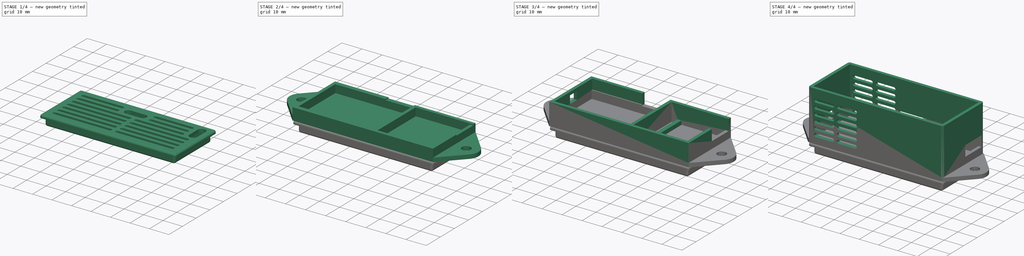
[diagram: build sequence overview — one tinted view per stage of 4, left to right]
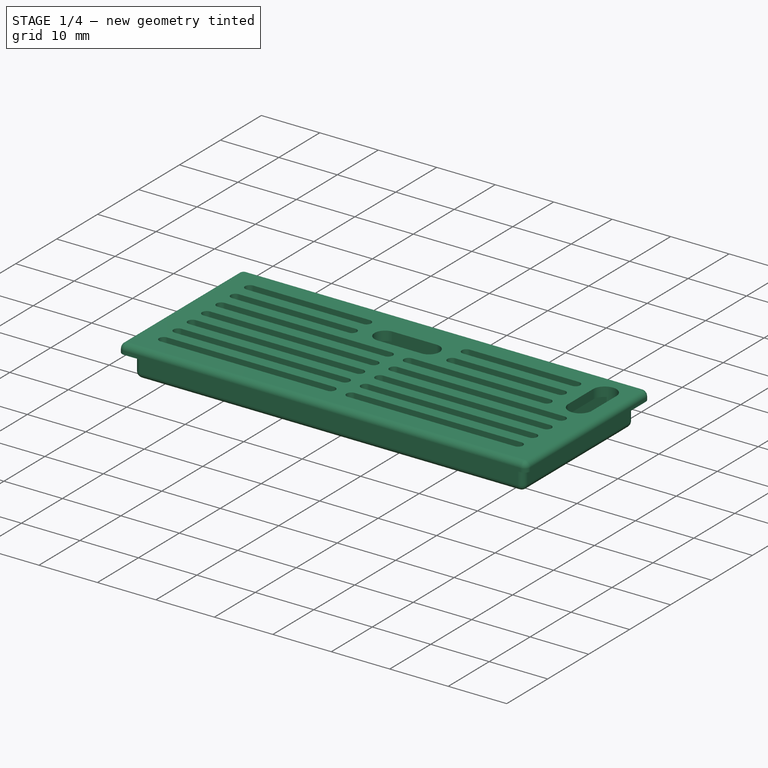
[diagram: stage 1 of 4 — iso view after this stage's code; geometry added in this stage tinted green]
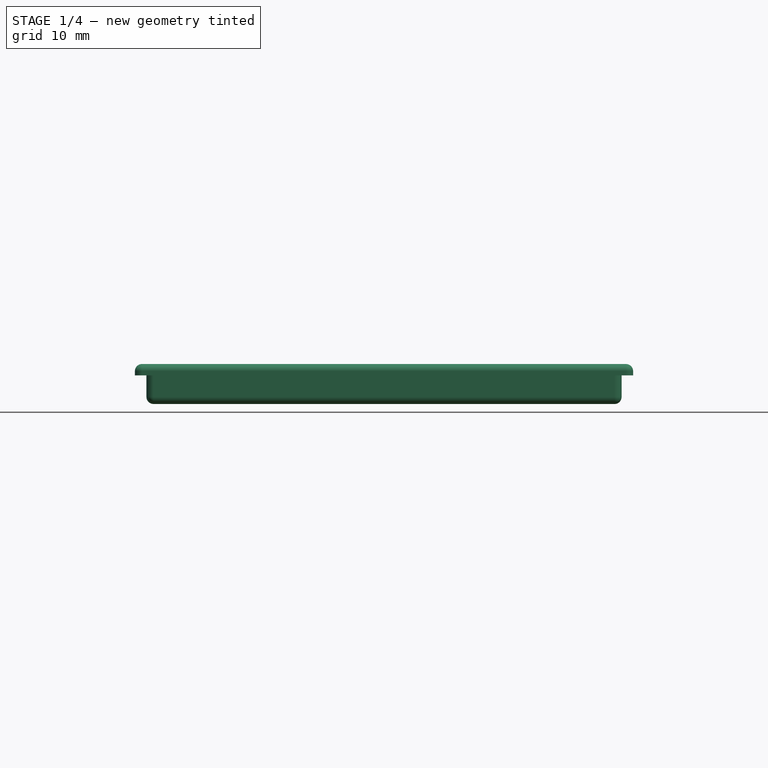
[diagram: stage 1 of 4 — front view after this stage's code; geometry added in this stage tinted green]
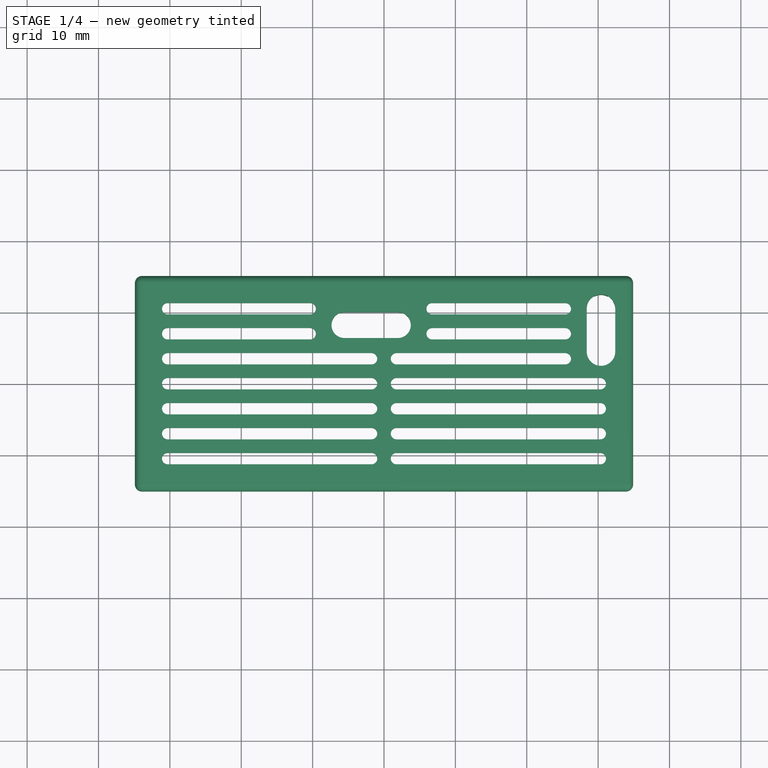
[diagram: stage 1 of 4 — top view after this stage's code; geometry added in this stage tinted green]
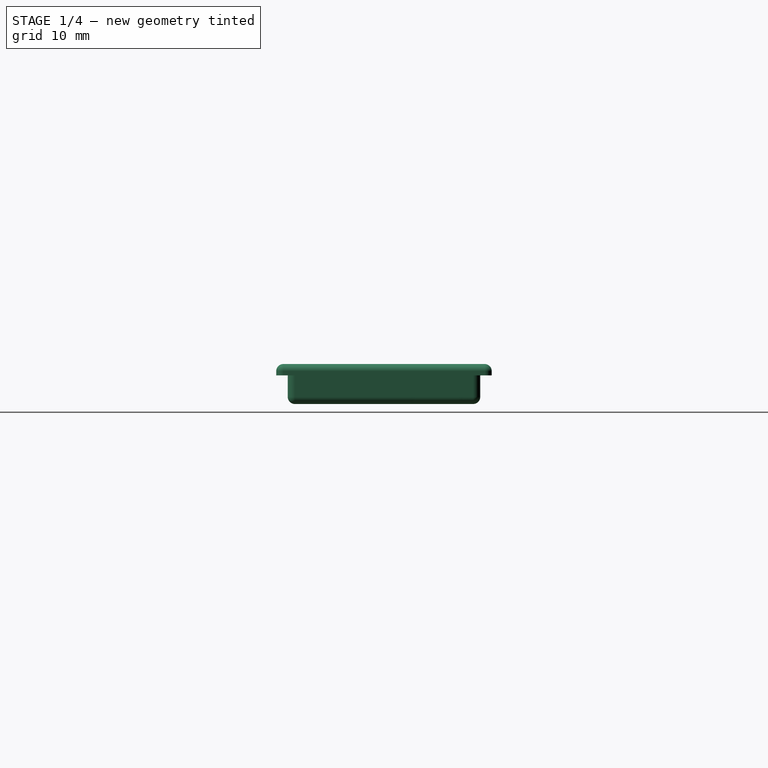
[diagram: stage 1 of 4 — right view after this stage's code; geometry added in this stage tinted green]
FCSTD DOCUMENT  (FreeCAD 0.19R24267 (Git))
Label: WifiRelay
License: All rights reserved
LicenseURL: http://en.wikipedia.org/wiki/All_rights_reserved
objects: Sketcher::SketchObject×12, PartDesign::Pad×8, PartDesign::Pocket×3, PartDesign::Fillet×3, PartDesign::Body×2, PartDesign::ShapeBinder×1, App::Part×1
note: 43 computed .brp shape members not serialized (recipe doc carries the construction recipe); baked Part::Feature solids carry a one-line shape summary decoded from their .brp

FEATURE [PartDesign::ShapeBinder] ShapeBinder
  Support = -> [Sketch]
  TraceSupport = false
FEATURE [Sketcher::SketchObject] Sketch008
  ExternalGeometry = -> [ShapeBinder]
  FullyConstrained = true
  MapMode = 5
  Placement = pos=(0,0,0) rot=(0,1,0;3.14159rad)
  Support = -> [XY_Plane002]
  sketch-geometry (4):
    g0: LineSegment StartX=-34.9 StartY=15.1 StartZ=0 EndX=34.9 EndY=15.1 EndZ=0
    g1: LineSegment StartX=34.9 StartY=15.1 StartZ=0 EndX=34.9 EndY=-15.1 EndZ=0
    g2: LineSegment StartX=34.9 StartY=-15.1 StartZ=0 EndX=-34.9 EndY=-15.1 EndZ=0
    g3: LineSegment StartX=-34.9 StartY=-15.1 StartZ=0 EndX=-34.9 EndY=15.1 EndZ=0
  constraints (10):
    c: Coincident(g0,g1)
    c: Coincident(g1,g2)
    c: Coincident(g2,g3)
    c: Coincident(g3,g0)
    c: Horizontal(g0)
    c: Horizontal(g2)
    c: Vertical(g1)
    c: Vertical(g3)
    c: Coincident(g0,g-3)
    c: Coincident(g1,g-4)
FEATURE [PartDesign::Pad] Pad006
  Direction = (1,1,1)
  Length = 1.6
  Length2 = 100
  Profile = -> Sketch008
  Type = 0
FEATURE [Sketcher::SketchObject] Sketch009
  AttachmentOffset = pos=(0,0,1.6) rot=(0,0,1;0rad)
  ExternalGeometry = -> [ShapeBinder]
  FullyConstrained = true
  MapMode = 5
  Placement = pos=(0,0,-1.6) rot=(0,1,0;3.14159rad)
  Support = -> [XY_Plane002]
  expr: .AttachmentOffset.Base.z = <<Pad006>>.Length
  sketch-geometry (16):
    g0: LineSegment StartX=-33.285 StartY=13.485 StartZ=0 EndX=33.285 EndY=13.485 EndZ=0
    g1: LineSegment StartX=33.285 StartY=13.485 StartZ=0 EndX=33.285 EndY=-13.485 EndZ=0
    g2: LineSegment StartX=33.285 StartY=-13.485 StartZ=0 EndX=-33.285 EndY=-13.485 EndZ=0
    g3: LineSegment StartX=-33.285 StartY=-13.485 StartZ=0 EndX=-33.285 EndY=13.485 EndZ=0
    g4: LineSegment StartX=-33.3 StartY=13.485 StartZ=0 EndX=-33.285 EndY=13.485 EndZ=0
    g5: LineSegment StartX=-33.285 StartY=13.485 StartZ=0 EndX=-33.285 EndY=13.5 EndZ=0
    g6: LineSegment StartX=-33.285 StartY=-13.485 StartZ=0 EndX=-33.285 EndY=-13.5 EndZ=0
    g7: LineSegment StartX=33.3 StartY=-13 StartZ=0 EndX=33.285 EndY=-13 EndZ=0
    g8: LineSegment StartX=-32.085 StartY=12.285 StartZ=0 EndX=32.085 EndY=12.285 EndZ=0
    g9: LineSegment StartX=32.085 StartY=12.285 StartZ=0 EndX=32.085 EndY=-12.285 EndZ=0
    g10: LineSegment StartX=32.085 StartY=-12.285 StartZ=0 EndX=-32.085 EndY=-12.285 EndZ=0
    g11: LineSegment StartX=-32.085 StartY=-12.285 StartZ=0 EndX=-32.085 EndY=12.285 EndZ=0
    g12: LineSegment StartX=32.085 StartY=-12.285 StartZ=0 EndX=33.285 EndY=-12.285 EndZ=0
    g13: LineSegment StartX=32.085 StartY=-12.285 StartZ=0 EndX=32.085 EndY=-13.485 EndZ=0
    g14: LineSegment StartX=-32.085 StartY=12.285 StartZ=0 EndX=-32.085 EndY=13.485 EndZ=0
    g15: LineSegment StartX=-32.085 StartY=12.285 StartZ=0 EndX=-33.285 EndY=12.285 EndZ=0
  constraints (48):
    c: Coincident(g0,g1)
    c: Coincident(g1,g2)
    c: Coincident(g2,g3)
    c: Coincident(g3,g0)
    c: Horizontal(g0)
    c: Horizontal(g2)
    c: Vertical(g1)
    c: Vertical(g3)
    c: PointOnObject(g4,g-6)
    c: Coincident(g4,g0)
    c: Horizontal(g4)
    c: Coincident(g4,g5)
    c: PointOnObject(g5,g-3)
    c: Vertical(g5)
    c: Coincident(g6,g2)
    c: PointOnObject(g6,g-4)
    c: Vertical(g6)
    c: Coincident(g7,g-5)
    c: PointOnObject(g7,g1)
    c: Horizontal(g7)
    c: Equal(g4,g5)
    c: Equal(g5,g6)
    c: Equal(g6,g7)
    c: DistanceX(g-6,g5) = 0.015
    c: Coincident(g8,g9)
    c: Coincident(g9,g10)
    c: Coincident(g10,g11)
    c: Coincident(g11,g8)
    c: Horizontal(g8)
    c: Horizontal(g10)
    c: Vertical(g9)
    c: Vertical(g11)
    c: Coincident(g12,g9)
    c: PointOnObject(g12,g1)
    c: Horizontal(g12)
    c: Coincident(g13,g9)
    c: PointOnObject(g13,g2)
    c: Vertical(g13)
    c: Coincident(g14,g8)
    c: PointOnObject(g14,g0)
    c: Vertical(g14)
    c: Coincident(g15,g8)
    c: PointOnObject(g15,g3)
    c: Horizontal(g15)
    c: Equal(g15,g14)
    c: Equal(g14,g13)
    c: Equal(g13,g12)
    c: DistanceX(g5,g14) = 1.2
FEATURE [PartDesign::Pad] Pad007
  BaseFeature = -> Pad006
  Direction = (1,1,1)
  Length = 4
  Length2 = 100
  Profile = -> Sketch009
  Type = 0
FEATURE [Sketcher::SketchObject] Sketch010
  ExternalGeometry = -> [ShapeBinder]
  FullyConstrained = true
  MapMode = 5
  Placement = pos=(0,0,0) rot=(0,1,0;3.14159rad)
  Support = -> [XY_Plane002]
  sketch-geometry (90):
    g0: LineSegment StartX=-33.3 StartY=7.5 StartZ=0 EndX=-26.3 EndY=7.5 EndZ=0
    g1: ArcOfCircle CenterX=-30.4 CenterY=10.5 CenterZ=0 NormalX=0 NormalY=0 NormalZ=1 AngleXU=0 Radius=2 StartAngle=5e-16 EndAngle=3.14159
    g2: ArcOfCircle CenterX=-30.4 CenterY=4.5 CenterZ=0 NormalX=0 NormalY=0 NormalZ=1 AngleXU=0 Radius=2 StartAngle=3.14159 EndAngle=6.28319
    g3: LineSegment StartX=-32.4 StartY=10.5 StartZ=0 EndX=-32.4 EndY=4.5 EndZ=0
    g4: LineSegment StartX=-28.4 StartY=10.5 StartZ=0 EndX=-28.4 EndY=4.5 EndZ=0
    g5: LineSegment StartX=1.8 StartY=13 StartZ=0 EndX=1.8 EndY=5 EndZ=0
    g6: ArcOfCircle CenterX=-1.95 CenterY=8.2 CenterZ=0 NormalX=0 NormalY=0 NormalZ=1 AngleXU=0 Radius=1.8 StartAngle=1.5708 EndAngle=4.71239
    g7: ArcOfCircle CenterX=5.55 CenterY=8.2 CenterZ=0 NormalX=0 NormalY=0 NormalZ=1 AngleXU=0 Radius=1.8 StartAngle=4.71239 EndAngle=7.85398
    g8: LineSegment StartX=-1.95 StartY=6.4 StartZ=0 EndX=5.55 EndY=6.4 EndZ=0
    g9: LineSegment StartX=-1.95 StartY=10 StartZ=0 EndX=5.55 EndY=10 EndZ=0
    g10: ArcOfCircle CenterX=-25.4 CenterY=10.5 CenterZ=0 NormalX=0 NormalY=0 NormalZ=1 AngleXU=0 Radius=0.8 StartAngle=1.5708 EndAngle=4.71239
    g11: ArcOfCircle CenterX=-6.75 CenterY=10.5 CenterZ=0 NormalX=0 NormalY=0 NormalZ=1 AngleXU=0 Radius=0.8 StartAngle=4.71239 EndAngle=7.85398
    g12: LineSegment StartX=-25.4 StartY=9.7 StartZ=0 EndX=-6.75 EndY=9.7 EndZ=0
    g13: LineSegment StartX=-25.4 StartY=11.3 StartZ=0 EndX=-6.75 EndY=11.3 EndZ=0
    g14: LineSegment StartX=-1.95 StartY=8.2 StartZ=0 EndX=-3.75 EndY=8.2 EndZ=0
    g15: ArcOfCircle CenterX=-25.4 CenterY=7 CenterZ=0 NormalX=0 NormalY=0 NormalZ=1 AngleXU=0 Radius=0.8 StartAngle=1.5708 EndAngle=4.71239
    g16: ArcOfCircle CenterX=-6.75 CenterY=7 CenterZ=0 NormalX=0 NormalY=0 NormalZ=1 AngleXU=0 Radius=0.8 StartAngle=4.71239 EndAngle=7.85398
    g17: LineSegment StartX=-25.4 StartY=6.2 StartZ=0 EndX=-6.75 EndY=6.2 EndZ=0
    g18: LineSegment StartX=-25.4 StartY=7.8 StartZ=0 EndX=-6.75 EndY=7.8 EndZ=0
    g19: ArcOfCircle CenterX=-25.4 CenterY=3.5 CenterZ=0 NormalX=0 NormalY=0 NormalZ=1 AngleXU=0 Radius=0.8 StartAngle=1.5708 EndAngle=4.71239
    g20: ArcOfCircle CenterX=-1.75 CenterY=3.5 CenterZ=0 NormalX=0 NormalY=0 NormalZ=1 AngleXU=0 Radius=0.8 StartAngle=4.71239 EndAngle=7.85398
    g21: LineSegment StartX=-25.4 StartY=2.7 StartZ=0 EndX=-1.75 EndY=2.7 EndZ=0
    g22: LineSegment StartX=-25.4 StartY=4.3 StartZ=0 EndX=-1.75 EndY=4.3 EndZ=0
    g23: ArcOfCircle CenterX=-30.3 CenterY=-1e-16 CenterZ=0 NormalX=0 NormalY=0 NormalZ=1 AngleXU=0 Radius=0.8 StartAngle=1.5708 EndAngle=4.71239
    g24: ArcOfCircle CenterX=-1.75 CenterY=0 CenterZ=0 NormalX=0 NormalY=0 NormalZ=1 AngleXU=0 Radius=0.8 StartAngle=4.71239 EndAngle=7.85398
    g25: LineSegment StartX=-30.3 StartY=-0.8 StartZ=0 EndX=-1.75 EndY=-0.8 EndZ=0
    g26: LineSegment StartX=-30.3 StartY=0.8 StartZ=0 EndX=-1.75 EndY=0.8 EndZ=0
    g27: ArcOfCircle CenterX=-30.3 CenterY=-3.5 CenterZ=0 NormalX=0 NormalY=0 NormalZ=1 AngleXU=0 Radius=0.8 StartAngle=1.5708 EndAngle=4.71239
    g28: ArcOfCircle CenterX=-1.75 CenterY=-3.5 CenterZ=0 NormalX=0 NormalY=0 NormalZ=1 AngleXU=0 Radius=0.8 StartAngle=4.71239 EndAngle=7.85398
    g29: LineSegment StartX=-30.3 StartY=-4.3 StartZ=0 EndX=-1.75 EndY=-4.3 EndZ=0
    g30: LineSegment StartX=-30.3 StartY=-2.7 StartZ=0 EndX=-1.75 EndY=-2.7 EndZ=0
    g31: ArcOfCircle CenterX=-30.3 CenterY=-7 CenterZ=0 NormalX=0 NormalY=0 NormalZ=1 AngleXU=0 Radius=0.8 StartAngle=1.5708 EndAngle=4.71239
    g32: ArcOfCircle CenterX=-1.75 CenterY=-7 CenterZ=0 NormalX=0 NormalY=0 NormalZ=1 AngleXU=0 Radius=0.8 StartAngle=4.71239 EndAngle=7.85398
    g33: LineSegment StartX=-30.3 StartY=-7.8 StartZ=0 EndX=-1.75 EndY=-7.8 EndZ=0
    g34: LineSegment StartX=-30.3 StartY=-6.2 StartZ=0 EndX=-1.75 EndY=-6.2 EndZ=0
    g35: ArcOfCircle CenterX=-30.3 CenterY=-10.5 CenterZ=0 NormalX=0 NormalY=0 NormalZ=1 AngleXU=0 Radius=0.8 StartAngle=1.5708 EndAngle=4.71239
    g36: ArcOfCircle CenterX=-1.75 CenterY=-10.5 CenterZ=0 NormalX=0 NormalY=0 NormalZ=1 AngleXU=0 Radius=0.8 StartAngle=4.71239 EndAngle=7.85398
    g37: LineSegment StartX=-30.3 StartY=-11.3 StartZ=0 EndX=-1.75 EndY=-11.3 EndZ=0
    g38: LineSegment StartX=-30.3 StartY=-9.7 StartZ=0 EndX=-1.75 EndY=-9.7 EndZ=0
    g39: LineSegment StartX=-1.75 StartY=2.7 StartZ=0 EndX=-1.75 EndY=0.8 EndZ=0
    g40: LineSegment StartX=-1.75 StartY=-0.8 StartZ=0 EndX=-1.75 EndY=-2.7 EndZ=0
    g41: LineSegment StartX=-1.75 StartY=-4.3 StartZ=0 EndX=-1.75 EndY=-6.2 EndZ=0
    g42: LineSegment StartX=-1.75 StartY=-7.8 StartZ=0 EndX=-1.75 EndY=-9.7 EndZ=0
    g43: LineSegment StartX=-25.4 StartY=9.7 StartZ=0 EndX=-25.4 EndY=7.8 EndZ=0
    g44: LineSegment StartX=-25.4 StartY=6.2 StartZ=0 EndX=-25.4 EndY=4.3 EndZ=0
    g45: LineSegment StartX=-30.3 StartY=-0.8 StartZ=0 EndX=-30.3 EndY=-2.7 EndZ=0
    g46: LineSegment StartX=-30.3 StartY=-4.3 StartZ=0 EndX=-30.3 EndY=-6.2 EndZ=0
    g47: LineSegment StartX=-30.3 StartY=-7.8 StartZ=0 EndX=-30.3 EndY=-9.7 EndZ=0
    g48: LineSegment StartX=-25.4 StartY=2.7 StartZ=0 EndX=-25.4 EndY=0.8 EndZ=0
    g49: ArcOfCircle CenterX=10.35 CenterY=10.5 CenterZ=0 NormalX=0 NormalY=0 NormalZ=1 AngleXU=0 Radius=0.8 StartAngle=1.5708 EndAngle=4.71239
    g50: ArcOfCircle CenterX=30.3 CenterY=10.5 CenterZ=0 NormalX=0 NormalY=0 NormalZ=1 AngleXU=0 Radius=0.8 StartAngle=4.71239 EndAngle=7.85398
    g51: LineSegment StartX=10.35 StartY=9.7 StartZ=0 EndX=30.3 EndY=9.7 EndZ=0
    g52: LineSegment StartX=10.35 StartY=11.3 StartZ=0 EndX=30.3 EndY=11.3 EndZ=0
    g53: ArcOfCircle CenterX=10.35 CenterY=7 CenterZ=0 NormalX=0 NormalY=0 NormalZ=1 AngleXU=0 Radius=0.8 StartAngle=1.5708 EndAngle=4.71239
    g54: ArcOfCircle CenterX=30.3 CenterY=7 CenterZ=0 NormalX=0 NormalY=0 NormalZ=1 AngleXU=0 Radius=0.8 StartAngle=4.71239 EndAngle=7.85398
    g55: LineSegment StartX=10.35 StartY=6.2 StartZ=0 EndX=30.3 EndY=6.2 EndZ=0
    g56: LineSegment StartX=10.35 StartY=7.8 StartZ=0 EndX=30.3 EndY=7.8 EndZ=0
    g57: LineSegment StartX=30.3 StartY=9.7 StartZ=0 EndX=30.3 EndY=7.8 EndZ=0
    g58: LineSegment StartX=30.3 StartY=6.2 StartZ=0 EndX=30.3 EndY=4.3 EndZ=0
    g59: LineSegment StartX=-6.75 StartY=10.5 StartZ=0 EndX=10.35 EndY=10.5 EndZ=0
    g60: LineSegment StartX=5.55 StartY=8.2 StartZ=0 EndX=7.35 EndY=8.2 EndZ=0
    g61: ArcOfCircle CenterX=1.75 CenterY=3.5 CenterZ=0 NormalX=0 NormalY=0 NormalZ=1 AngleXU=0 Radius=0.8 StartAngle=1.5708 EndAngle=4.71239
    g62: ArcOfCircle CenterX=30.3 CenterY=3.5 CenterZ=0 NormalX=0 NormalY=0 NormalZ=1 AngleXU=0 Radius=0.8 StartAngle=4.71239 EndAngle=7.85398
    g63: LineSegment StartX=1.75 StartY=2.7 StartZ=0 EndX=30.3 EndY=2.7 EndZ=0
    g64: LineSegment StartX=1.75 StartY=4.3 StartZ=0 EndX=30.3 EndY=4.3 EndZ=0
    g65: LineSegment StartX=30.3 StartY=2.7 StartZ=0 EndX=30.3 EndY=0.8 EndZ=0
    g66: ArcOfCircle CenterX=1.75 CenterY=9e-16 CenterZ=0 NormalX=0 NormalY=0 NormalZ=1 AngleXU=0 Radius=0.8 StartAngle=1.5708 EndAngle=4.71239
    g67: ArcOfCircle CenterX=30.3 CenterY=8e-16 CenterZ=0 NormalX=0 NormalY=0 NormalZ=1 AngleXU=0 Radius=0.8 StartAngle=4.71239 EndAngle=7.85398
    g68: LineSegment StartX=1.75 StartY=-0.8 StartZ=0 EndX=30.3 EndY=-0.8 EndZ=0
    g69: LineSegment StartX=1.75 StartY=0.8 StartZ=0 EndX=30.3 EndY=0.8 EndZ=0
    g70: LineSegment StartX=30.3 StartY=-0.8 StartZ=0 EndX=30.3 EndY=-2.7 EndZ=0
    g71: ArcOfCircle CenterX=1.75 CenterY=-3.5 CenterZ=0 NormalX=0 NormalY=0 NormalZ=1 AngleXU=0 Radius=0.8 StartAngle=1.5708 EndAngle=4.71239
    g72: ArcOfCircle CenterX=30.3 CenterY=-3.5 CenterZ=0 NormalX=0 NormalY=0 NormalZ=1 AngleXU=0 Radius=0.8 StartAngle=4.71239 EndAngle=7.85398
    g73: LineSegment StartX=1.75 StartY=-4.3 StartZ=0 EndX=30.3 EndY=-4.3 EndZ=0
    g74: LineSegment StartX=1.75 StartY=-2.7 StartZ=0 EndX=30.3 EndY=-2.7 EndZ=0
    g75: LineSegment StartX=30.3 StartY=-4.3 StartZ=0 EndX=30.3 EndY=-6.2 EndZ=0
    g76: ArcOfCircle CenterX=1.75 CenterY=-7 CenterZ=0 NormalX=0 NormalY=0 NormalZ=1 AngleXU=0 Radius=0.8 StartAngle=1.5708 EndAngle=4.71239
    g77: ArcOfCircle CenterX=30.3 CenterY=-7 CenterZ=0 NormalX=0 NormalY=0 NormalZ=1 AngleXU=0 Radius=0.8 StartAngle=4.71239 EndAngle=7.85398
    g78: LineSegment StartX=1.75 StartY=-7.8 StartZ=0 EndX=30.3 EndY=-7.8 EndZ=0
    g79: LineSegment StartX=1.75 StartY=-6.2 StartZ=0 EndX=30.3 EndY=-6.2 EndZ=0
    g80: LineSegment StartX=30.3 StartY=-7.8 StartZ=0 EndX=30.3 EndY=-9.7 EndZ=0
    g81: ArcOfCircle CenterX=1.75 CenterY=-10.5 CenterZ=0 NormalX=0 NormalY=0 NormalZ=1 AngleXU=0 Radius=0.8 StartAngle=1.5708 EndAngle=4.71239
    g82: ArcOfCircle CenterX=30.3 CenterY=-10.5 CenterZ=0 NormalX=0 NormalY=0 NormalZ=1 AngleXU=0 Radius=0.8 StartAngle=4.71239 EndAngle=7.85398
    g83: LineSegment StartX=1.75 StartY=-11.3 StartZ=0 EndX=30.3 EndY=-11.3 EndZ=0
    g84: LineSegment StartX=1.75 StartY=-9.7 StartZ=0 EndX=30.3 EndY=-9.7 EndZ=0
    g85: LineSegment StartX=-0.95 StartY=3.5 StartZ=0 EndX=0.95 EndY=3.5 EndZ=0
    g86: LineSegment StartX=-25.4 StartY=11.3 StartZ=0 EndX=-25.4 EndY=13.5 EndZ=0
    g87: LineSegment StartX=-30.3 StartY=-11.3 StartZ=0 EndX=-30.3 EndY=-13.5 EndZ=0
    g88: LineSegment StartX=-31.1 StartY=-7 StartZ=0 EndX=-33.3 EndY=-7 EndZ=0
    g89: LineSegment StartX=31.1 StartY=10.5 StartZ=0 EndX=33.3 EndY=10.5 EndZ=0
  constraints (223):
    c: PointOnObject(g0,g-5)
    c: PointOnObject(g0,g-3)
    c: Tangent(g1,g4) = 1.5708
    c: Tangent(g1,g3) = -1.5708
    c: Tangent(g3,g2) = -1.5708
    c: Tangent(g4,g2) = 1.5708
    c: Vertical(g3)
    c: Symmetric(g-4,g-3,g0)
    c: DistanceY(g2,g1) = 6
    c: Radius(g1) = 2
    c: DistanceX(g-6,g1) = 0.9
    c: Symmetric(g1,g2,g0)
    c: PointOnObject(g5,g-7)
    c: PointOnObject(g5,g-8)
    c: Symmetric(g-8,g-8,g5)
    c: Tangent(g6,g9) = 1.5708
    c: Tangent(g6,g8) = -1.5708
    c: Tangent(g8,g7) = -1.5708
    c: Tangent(g9,g7) = 1.5708
    c: Horizontal(g8)
    c: Symmetric(g7,g6,g5)
    c: Radius(g7) = 1.8
    c: DistanceX(g6,g7) = 7.5
    c: DistanceY(g6,g-7) = 4.8
    c: Tangent(g10,g13) = 1.5708
    c: Tangent(g12,g11) = -1.5708
    c: Tangent(g13,g11) = 1.5708
    c: Horizontal(g12)
    c: Equal(g10,g11)
    c: Radius(g10) = 0.8
    c: DistanceX(g1,g10) = 3
    c: Coincident(g14,g6)
    c: PointOnObject(g14,g6)
    c: Horizontal(g14)
    c: DistanceX(g11,g14) = 3
    c: Tangent(g15,g18) = 1.5708
    c: Tangent(g15,g17) = -1.5708
    c: Tangent(g17,g16) = -1.5708
    c: Tangent(g18,g16) = 1.5708
    c: Horizontal(g17)
    c: Equal(g15,g16)
    c: Tangent(g19,g22) = 1.5708
    c: Tangent(g19,g21) = -1.5708
    c: Tangent(g21,g20) = -1.5708
    c: Tangent(g22,g20) = 1.5708
    c: Horizontal(g21)
    c: Equal(g19,g20)
    c: Tangent(g23,g26) = 1.5708
    c: Tangent(g23,g25) = -1.5708
    c: Tangent(g25,g24) = -1.5708
    c: Tangent(g26,g24) = 1.5708
    c: Horizontal(g25)
    c: Equal(g23,g24)
    c: Tangent(g27,g30) = 1.5708
    c: Tangent(g27,g29) = -1.5708
    c: Tangent(g29,g28) = -1.5708
    c: Tangent(g30,g28) = 1.5708
    c: Horizontal(g29)
    c: Equal(g27,g28)
    c: Tangent(g31,g34) = 1.5708
    c: Tangent(g31,g33) = -1.5708
    c: Tangent(g33,g32) = -1.5708
    c: Tangent(g34,g32) = 1.5708
    c: Horizontal(g33)
    c: Equal(g31,g32)
    c: Tangent(g35,g38) = 1.5708
    c: Tangent(g35,g37) = -1.5708
    c: Tangent(g37,g36) = -1.5708
    c: Tangent(g38,g36) = 1.5708
    c: Horizontal(g37)
    c: Equal(g35,g36)
    c: Equal(g10,g15)
    c: Equal(g15,g19)
    c: Equal(g19,g23)
    c: Equal(g23,g27)
    c: Equal(g27,g31)
    c: Equal(g31,g35)
    c: DistanceY(g-10,g35) = 2.2
    c: Equal(g12,g18)
    c: Coincident(g39,g20)
    c: Coincident(g39,g24)
    c: Vertical(g39)
    c: Coincident(g40,g24)
    c: Coincident(g40,g28)
    c: Vertical(g40)
    c: Coincident(g41,g28)
    c: Coincident(g41,g32)
    c: Vertical(g41)
    c: Coincident(g42,g32)
    c: Coincident(g42,g36)
    c: Vertical(g42)
    c: Coincident(g43,g15)
    c: Vertical(g43)
    c: Coincident(g44,g15)
    c: Coincident(g44,g19)
    c: Vertical(g44)
    c: Coincident(g45,g23)
    c: Coincident(g45,g27)
    c: Vertical(g45)
    c: Coincident(g46,g27)
    c: Coincident(g46,g31)
    c: Vertical(g46)
    c: Coincident(g47,g31)
    c: Coincident(g47,g35)
    c: Vertical(g47)
    c: DistanceX(g-10,g35) = 3
    c: Coincident(g48,g19)
    c: PointOnObject(g48,g26)
    c: Vertical(g48)
    c: Equal(g43,g44)
    c: Equal(g44,g48)
    c: Equal(g48,g45)
    c: Equal(g45,g46)
    c: Equal(g46,g47)
    c: Tangent(g10,g12) = -1.5708
    c: Coincident(g43,g10)
    c: Tangent(g49,g52) = 1.5708
    c: Tangent(g49,g51) = -1.5708
    c: Tangent(g51,g50) = -1.5708
    c: Tangent(g52,g50) = 1.5708
    c: Horizontal(g51)
    c: Equal(g49,g50)
    c: Tangent(g53,g56) = 1.5708
    c: Tangent(g53,g55) = -1.5708
    c: Tangent(g55,g54) = -1.5708
    c: Tangent(g56,g54) = 1.5708
    c: Horizontal(g55)
    c: Equal(g53,g54)
    c: Equal(g49,g11)
    c: Equal(g53,g16)
    c: Coincident(g57,g50)
    c: Coincident(g57,g54)
    c: Coincident(g58,g54)
    c: Equal(g51,g56)
    c: Vertical(g57)
    c: Vertical(g58)
    c: Equal(g39,g58)
    c: Equal(g58,g57)
    c: Coincident(g59,g11)
    c: Coincident(g59,g49)
    c: Coincident(g60,g7)
    c: PointOnObject(g60,g7)
    c: Horizontal(g60)
    c: DistanceX(g60,g49) = 3
    c: Tangent(g61,g64) = 1.5708
    c: Tangent(g61,g63) = -1.5708
    c: Tangent(g63,g62) = -1.5708
    c: Tangent(g64,g62) = 1.5708
    c: Horizontal(g63)
    c: Equal(g61,g62)
    c: Coincident(g65,g62)
    c: Vertical(g65)
    c: Tangent(g66,g69) = 1.5708
    c: Tangent(g66,g68) = -1.5708
    c: Tangent(g68,g67) = -1.5708
    c: Tangent(g69,g67) = 1.5708
    c: Horizontal(g68)
    c: Equal(g66,g67)
    c: Coincident(g70,g67)
    c: Vertical(g70)
    c: Tangent(g71,g74) = 1.5708
    c: Tangent(g71,g73) = -1.5708
    c: Tangent(g73,g72) = -1.5708
    c: Tangent(g74,g72) = 1.5708
    c: Horizontal(g73)
    c: Equal(g71,g72)
    c: Coincident(g75,g72)
    c: Vertical(g75)
    c: Tangent(g76,g79) = 1.5708
    c: Tangent(g76,g78) = -1.5708
    c: Tangent(g78,g77) = -1.5708
    c: Tangent(g79,g77) = 1.5708
    c: Horizontal(g78)
    c: Equal(g76,g77)
    c: Coincident(g80,g77)
    c: Vertical(g80)
    c: Tangent(g81,g84) = 1.5708
    c: Tangent(g81,g83) = -1.5708
    c: Tangent(g83,g82) = -1.5708
    c: Tangent(g84,g82) = 1.5708
    c: Horizontal(g83)
    c: Equal(g81,g82)
    c: Equal(g20,g61)
    c: Equal(g24,g66)
    c: Equal(g28,g71)
    c: Equal(g32,g76)
    c: Equal(g36,g81)
    c: Coincident(g58,g62)
    c: Coincident(g65,g67)
    c: Coincident(g70,g72)
    c: Coincident(g75,g77)
    c: Coincident(g82,g80)
    c: Equal(g58,g65)
    c: Equal(g65,g70)
    c: Equal(g70,g75)
    c: Equal(g75,g80)
    c: Horizontal(g59)
    c: Equal(g64,g69)
    c: Equal(g69,g74)
    c: Equal(g74,g79)
    c: Equal(g79,g84)
    c: Equal(g64,g26)
    c: PointOnObject(g85,g20)
    c: PointOnObject(g85,g61)
    c: PointOnObject(g20,g85)
    c: PointOnObject(g61,g85)
    c: Equal(g39,g85)
    c: Coincident(g86,g10)
    c: PointOnObject(g86,g-6)
    c: Vertical(g86)
    c: Coincident(g87,g35)
    c: PointOnObject(g87,g-10)
    c: Vertical(g87)
    c: Equal(g86,g87)
    c: PointOnObject(g88,g31)
    c: PointOnObject(g88,g-5)
    c: Horizontal(g88)
    c: PointOnObject(g31,g88)
    c: PointOnObject(g89,g50)
    c: PointOnObject(g89,g-9)
    c: Horizontal(g89)
    c: PointOnObject(g50,g89)
    c: Equal(g89,g88)
FEATURE [PartDesign::Pocket] Pocket001
  BaseFeature = -> Pad007
  Length = 5
  Length2 = 100
  Profile = -> Sketch010
  Reversed = true
  Type = 1
FEATURE [PartDesign::Body] Body
  Group = -> [Sketch,Sketch001,Pad,Sketch002,Pad001,Sketch006,Sketch003,Pad004,Sketch007,Pad005,Pad002,Sketch004,Pocket,Sketch005,Pad003,Sketch011,Pocket002,Fillet001,Fillet002]
  Origin = -> Origin001
  Tip = -> Fillet002
FEATURE [PartDesign::Fillet] Fillet
  Base = -> Pocket001 [Edge6,Edge3,Edge11,Edge9,Edge8,Edge2,Edge218,Edge221,Edge220,Edge5,Edge222,Edge217,Edge1,Edge224,Edge219,Edge223]
  BaseFeature = -> Pocket001
  Radius = 1
  SupportTransform = false
FEATURE [PartDesign::Body] Body001
  Group = -> [ShapeBinder,Sketch008,Pad006,Sketch009,Pad007,Sketch010,Pocket001,Fillet]
  Origin = -> Origin002
  Placement = pos=(0,0,27.6) rot=(0,0,1;0rad)
  Tip = -> Fillet
  expr: .Placement.Base.z = <<Pad>>.Length + <<Pad001>>.Length + <<Pad002>>.Length + <<Pad003>>.Length + <<Pad006>>.Length
FEATURE [App::Part] Part
  Group = -> [Body,Body001]
  Origin = -> Origin
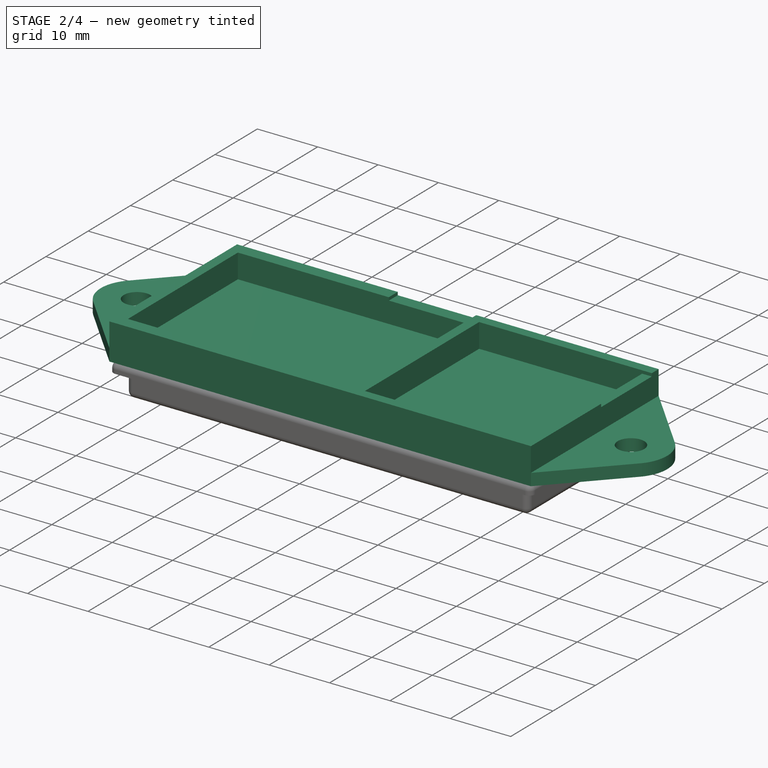
[diagram: stage 2 of 4 — iso view after this stage's code; geometry added in this stage tinted green]
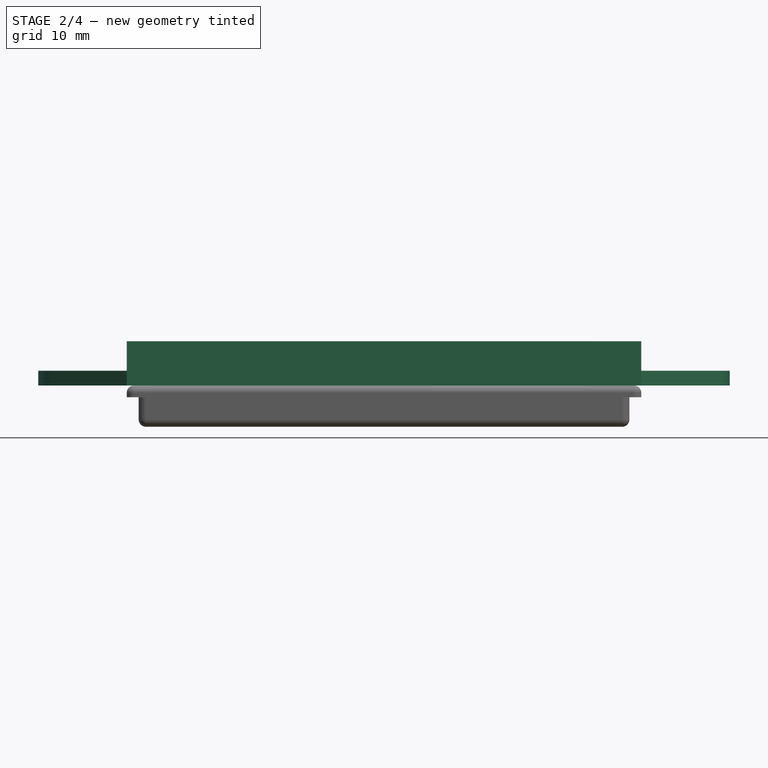
[diagram: stage 2 of 4 — front view after this stage's code; geometry added in this stage tinted green]
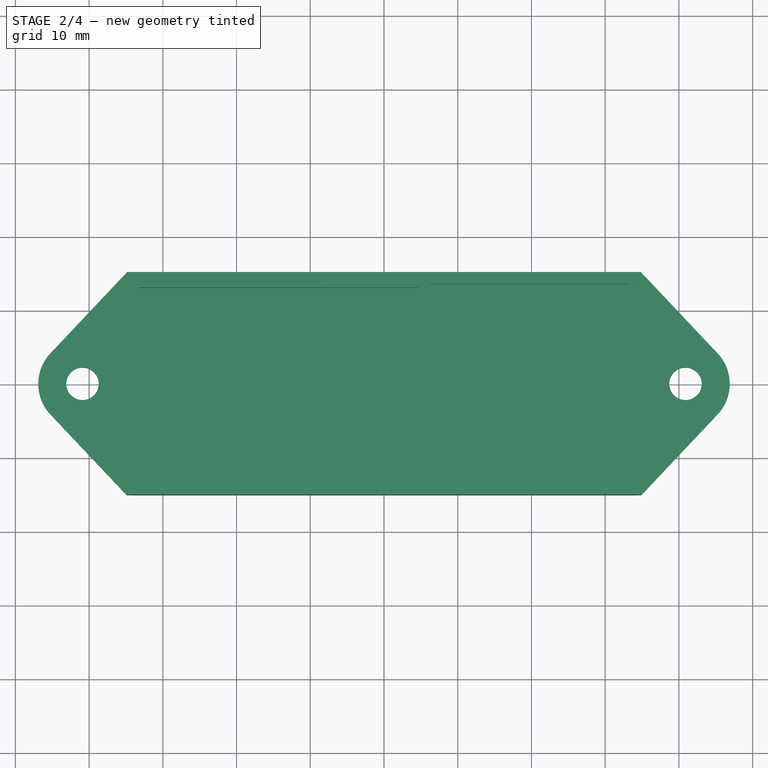
[diagram: stage 2 of 4 — top view after this stage's code; geometry added in this stage tinted green]
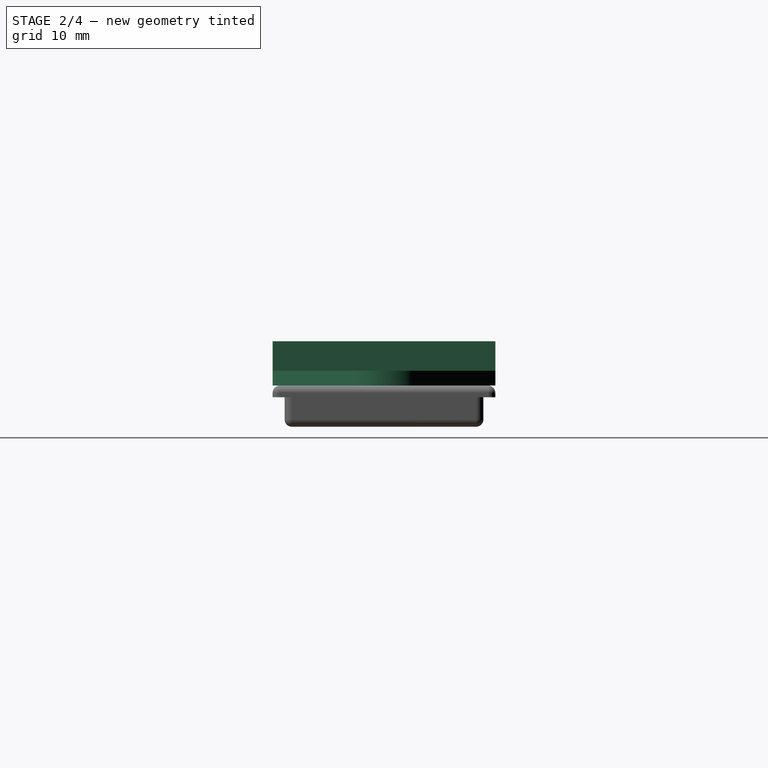
[diagram: stage 2 of 4 — right view after this stage's code; geometry added in this stage tinted green]
FEATURE [Sketcher::SketchObject] Sketch  label="Template"
  FullyConstrained = true
  MapMode = 5
  Support = -> [XY_Plane001]
  sketch-geometry (22):
    g0: LineSegment StartX=-33.3 StartY=13 StartZ=0 EndX=4.7 EndY=13 EndZ=0
    g1: LineSegment StartX=4.7 StartY=13 StartZ=0 EndX=4.7 EndY=-13 EndZ=0
    g2: LineSegment StartX=4.7 StartY=-13 StartZ=0 EndX=-33.3 EndY=-13 EndZ=0
    g3: LineSegment StartX=-33.3 StartY=-13 StartZ=0 EndX=-33.3 EndY=13 EndZ=0
    g4: LineSegment StartX=-33.3 StartY=9e-16 StartZ=0 EndX=33.3 EndY=9e-16 EndZ=0
    g5: LineSegment StartX=6.3 StartY=13.5 StartZ=0 EndX=33.3 EndY=13.5 EndZ=0
    g6: LineSegment StartX=33.3 StartY=13.5 StartZ=0 EndX=33.3 EndY=-13.5 EndZ=0
    g7: LineSegment StartX=33.3 StartY=-13.5 StartZ=0 EndX=6.3 EndY=-13.5 EndZ=0
    g8: LineSegment StartX=6.3 StartY=-13.5 StartZ=0 EndX=6.3 EndY=13.5 EndZ=0
    g9: LineSegment StartX=33.3 StartY=1.5 StartZ=0 EndX=26.3 EndY=1.5 EndZ=0
    g10: LineSegment StartX=26.3 StartY=1.5 StartZ=0 EndX=26.3 EndY=13.5 EndZ=0
    g11: LineSegment StartX=34.9 StartY=15.1 StartZ=0 EndX=-34.9 EndY=15.1 EndZ=0
    g12: LineSegment StartX=-34.9 StartY=15.1 StartZ=0 EndX=-34.9 EndY=-15.1 EndZ=0
    g13: LineSegment StartX=-34.9 StartY=-15.1 StartZ=0 EndX=34.9 EndY=-15.1 EndZ=0
    g14: LineSegment StartX=34.9 StartY=-15.1 StartZ=0 EndX=34.9 EndY=15.1 EndZ=0
    g15: LineSegment StartX=33.3 StartY=13.5 StartZ=0 EndX=33.3 EndY=15.1 EndZ=0
    g16: LineSegment StartX=33.3 StartY=-13.5 StartZ=0 EndX=34.9 EndY=-13.5 EndZ=0
    g17: LineSegment StartX=-33.3 StartY=13 StartZ=0 EndX=-34.9 EndY=13 EndZ=0
    g18: LineSegment StartX=33.3 StartY=-13.5 StartZ=0 EndX=33.3 EndY=-15.1 EndZ=0
    g19: LineSegment StartX=4.7 StartY=13 StartZ=0 EndX=6.3 EndY=13 EndZ=0
    g20: LineSegment StartX=4.7 StartY=5 StartZ=0 EndX=-8.3 EndY=5 EndZ=0
    g21: LineSegment StartX=-8.3 StartY=5 StartZ=0 EndX=-8.3 EndY=13 EndZ=0
  constraints (68):
    c: Coincident(g0,g1)
    c: Coincident(g1,g2)
    c: Coincident(g2,g3)
    c: Coincident(g3,g0)
    c: Horizontal(g0)
    c: Horizontal(g2)
    c: Vertical(g1)
    c: Vertical(g3)
    c: DistanceY(g3,g3) = 26
    c: DistanceX(g0,g0) = 38
    c: PointOnObject(g4,g3)
    c: Coincident(g5,g6)
    c: Coincident(g6,g7)
    c: Coincident(g7,g8)
    c: Coincident(g8,g5)
    c: Horizontal(g5)
    c: Horizontal(g7)
    c: Vertical(g8)
    c: PointOnObject(g4,g6)
    c: Symmetric(g5,g6,g4)
    c: Symmetric(g0,g1,g4)
    c: DistanceY(g6,g6) = 27
    c: DistanceX(g5,g5) = 27
    c: DistanceX(g0,g5) = 1.6
    c: PointOnObject(g9,g6)
    c: Horizontal(g9)
    c: Coincident(g9,g10)
    c: PointOnObject(g10,g5)
    c: Vertical(g10)
    c: DistanceY(g9,g5) = 12
    c: DistanceX(g10,g5) = 7
    c: Coincident(g11,g12)
    c: Coincident(g12,g13)
    c: Coincident(g13,g14)
    c: Coincident(g14,g11)
    c: Horizontal(g11)
    c: Horizontal(g13)
    c: Vertical(g12)
    c: Vertical(g14)
    c: Coincident(g15,g5)
    c: PointOnObject(g15,g11)
    c: Vertical(g15)
    c: Coincident(g16,g6)
    c: PointOnObject(g16,g14)
    c: Horizontal(g16)
    c: Coincident(g17,g0)
    c: PointOnObject(g17,g12)
    c: Horizontal(g17)
    c: Equal(g15,g16)
    c: Coincident(g18,g6)
    c: PointOnObject(g18,g13)
    c: Vertical(g18)
    c: Equal(g18,g15)
    c: Coincident(g19,g0)
    c: PointOnObject(g19,g8)
    c: Horizontal(g19)
    c: Equal(g19,g15)
    c: Equal(g17,g18)
    c: DistanceX(g11,g11) = 69.8  'Length'
    c: DistanceY(g12,g12) = 30.2
    c: Symmetric(g13,g11,g-1)
    c: PointOnObject(g20,g1)
    c: Horizontal(g20)
    c: Coincident(g20,g21)
    c: PointOnObject(g21,g0)
    c: Vertical(g21)
    c: DistanceX(g21,g0) = 13
    c: DistanceY(g21,g21) = 8
FEATURE [Sketcher::SketchObject] Sketch001
  ExternalGeometry = -> [Sketch]
  FullyConstrained = true
  MapMode = 5
  Support = -> [XY_Plane001]
  sketch-geometry (11):
    g0: LineSegment StartX=-34.9 StartY=15.1 StartZ=0 EndX=34.9 EndY=15.1 EndZ=0
    g1: LineSegment StartX=34.9 StartY=-15.1 StartZ=0 EndX=-34.9 EndY=-15.1 EndZ=0
    g2: Circle CenterX=-40.9 CenterY=-1.3e-15 CenterZ=0 NormalX=0 NormalY=0 NormalZ=1 AngleXU=0 Radius=2.2
    g3: Circle CenterX=40.9 CenterY=9e-16 CenterZ=0 NormalX=0 NormalY=0 NormalZ=1 AngleXU=0 Radius=2.2
    g4: LineSegment StartX=-34.9 StartY=15.1 StartZ=0 EndX=-45.2637 EndY=4.11803 EndZ=0
    g5: LineSegment StartX=-34.9 StartY=-15.1 StartZ=0 EndX=-45.2637 EndY=-4.11803 EndZ=0
    g6: LineSegment StartX=34.9 StartY=-15.1 StartZ=0 EndX=45.2637 EndY=-4.11803 EndZ=0
    g7: LineSegment StartX=34.9 StartY=15.1 StartZ=0 EndX=45.2637 EndY=4.11803 EndZ=0
    g8: ArcOfCircle CenterX=40.9 CenterY=9e-16 CenterZ=0 NormalX=0 NormalY=0 NormalZ=1 AngleXU=0 Radius=6 StartAngle=5.52674 EndAngle=7.03963
    g9: ArcOfCircle CenterX=-40.9 CenterY=-1.3e-15 CenterZ=0 NormalX=0 NormalY=0 NormalZ=1 AngleXU=0 Radius=6 StartAngle=2.38515 EndAngle=3.89803
    g10: Circle CenterX=-40.9 CenterY=-1.3e-15 CenterZ=0 NormalX=0 NormalY=0 NormalZ=1 AngleXU=0 Radius=6
  constraints (25):
    c: Coincident(g0,g-3)
    c: Coincident(g0,g-3)
    c: Coincident(g1,g-4)
    c: Coincident(g1,g-4)
    c: Equal(g3,g2)
    c: Radius(g2) = 2.2
    c: Coincident(g4,g0)
    c: Coincident(g5,g1)
    c: Coincident(g6,g1)
    c: Coincident(g7,g0)
    c: Coincident(g8,g3)
    c: Tangent(g7,g8) = 1.5708
    c: Tangent(g6,g8) = -1.5708
    c: Coincident(g9,g2)
    c: Tangent(g4,g9) = -1.5708
    c: Tangent(g5,g9) = 1.5708
    c: Equal(g9,g8)
    c: Equal(g5,g4)
    c: Equal(g4,g7)
    c: Equal(g7,g6)
    c: Radius(g9) = 6
    c: DistanceX(g2,g3) = 81.8
    c: Coincident(g10,g2)
    c: Equal(g10,g9)
    c: Tangent(g10,g-5)
FEATURE [PartDesign::Pad] Pad
  Direction = (1,1,1)
  Length = 2
  Length2 = 100
  Profile = -> Sketch001
  Type = 0
FEATURE [Sketcher::SketchObject] Sketch002
  AttachmentOffset = pos=(0,0,2) rot=(0,0,1;0rad)
  ExternalGeometry = -> [Sketch]
  FullyConstrained = true
  MapMode = 5
  Placement = pos=(0,0,2) rot=(0,0,1;0rad)
  Support = -> [XY_Plane001]
  expr: .AttachmentOffset.Base.z = Pad.Length
  sketch-geometry (16):
    g0: LineSegment StartX=6.3 StartY=13.5 StartZ=0 EndX=34.9 EndY=13.5 EndZ=0
    g1: LineSegment StartX=34.9 StartY=13.5 StartZ=0 EndX=34.9 EndY=15.1 EndZ=0
    g2: LineSegment StartX=-34.9 StartY=15.1 StartZ=0 EndX=-34.9 EndY=-15.1 EndZ=0
    g3: LineSegment StartX=-34.9 StartY=-15.1 StartZ=0 EndX=34.9 EndY=-15.1 EndZ=0
    g4: LineSegment StartX=34.9 StartY=-15.1 StartZ=0 EndX=34.9 EndY=1.5 EndZ=0
    g5: LineSegment StartX=34.9 StartY=1.5 StartZ=0 EndX=33.3 EndY=1.5 EndZ=0
    g6: LineSegment StartX=33.3 StartY=1.5 StartZ=0 EndX=33.3 EndY=-13.5 EndZ=0
    g7: LineSegment StartX=33.3 StartY=-13.5 StartZ=0 EndX=6.3 EndY=-13.5 EndZ=0
    g8: LineSegment StartX=6.3 StartY=-13.5 StartZ=0 EndX=6.3 EndY=13.5 EndZ=0
    g9: LineSegment StartX=-33.3 StartY=13 StartZ=0 EndX=-8.3 EndY=13 EndZ=0
    g10: LineSegment StartX=4.7 StartY=15.1 StartZ=0 EndX=4.7 EndY=-13 EndZ=0
    g11: LineSegment StartX=4.7 StartY=-13 StartZ=0 EndX=-33.3 EndY=-13 EndZ=0
    g12: LineSegment StartX=-33.3 StartY=-13 StartZ=0 EndX=-33.3 EndY=13 EndZ=0
    g13: LineSegment StartX=-8.3 StartY=13 StartZ=0 EndX=-8.3 EndY=15.1 EndZ=0
    g14: LineSegment StartX=-8.3 StartY=15.1 StartZ=0 EndX=-34.9 EndY=15.1 EndZ=0
    g15: LineSegment StartX=4.7 StartY=15.1 StartZ=0 EndX=34.9 EndY=15.1 EndZ=0
  constraints (36):
    c: Coincident(g0,g1)
    c: Coincident(g1,g-10)
    c: Coincident(g2,g-4)
    c: Coincident(g2,g3)
    c: Coincident(g3,g-10)
    c: Coincident(g3,g4)
    c: PointOnObject(g4,g-10)
    c: Coincident(g4,g5)
    c: Coincident(g5,g-9)
    c: Horizontal(g5)
    c: Coincident(g5,g6)
    c: Coincident(g6,g-8)
    c: Coincident(g6,g7)
    c: Coincident(g7,g-8)
    c: Coincident(g7,g8)
    c: Coincident(g8,g-7)
    c: Coincident(g0,g8)
    c: Coincident(g10,g11)
    c: Coincident(g11,g12)
    c: Coincident(g12,g9)
    c: Vertical(g10)
    c: Coincident(g9,g-6)
    c: Coincident(g10,g-5)
    c: Coincident(g11,g-5)
    c: PointOnObject(g0,g-10)
    c: PointOnObject(g-7,g0)
    c: Coincident(g9,g-11)
    c: PointOnObject(g10,g-3)
    c: Coincident(g9,g13)
    c: PointOnObject(g13,g-3)
    c: Vertical(g13)
    c: Coincident(g13,g14)
    c: Coincident(g14,g2)
    c: Coincident(g2,g-3)
    c: Coincident(g15,g10)
    c: Coincident(g15,g1)
FEATURE [PartDesign::Pad] Pad001
  BaseFeature = -> Pad
  Direction = (1,1,1)
  Length = 4
  Length2 = 100
  Profile = -> Sketch002
  Type = 0
FEATURE [Sketcher::SketchObject] Sketch003
  AttachmentOffset = pos=(0,0,6) rot=(0,0,1;0rad)
  ExternalGeometry = -> [Sketch]
  FullyConstrained = true
  MapMode = 5
  Placement = pos=(0,0,6) rot=(0,0,1;0rad)
  Support = -> [XY_Plane001]
  expr: .AttachmentOffset.Base.z = <<Sketch002>>.AttachmentOffset.Base.z + <<Pad001>>.Length
  sketch-geometry (16):
    g0: LineSegment StartX=6.3 StartY=13.5 StartZ=0 EndX=34.9 EndY=13.5 EndZ=0
    g1: LineSegment StartX=34.9 StartY=13.5 StartZ=0 EndX=34.9 EndY=15.1 EndZ=0
    g2: LineSegment StartX=-34.9 StartY=15.1 StartZ=0 EndX=-34.9 EndY=-15.1 EndZ=0
    g3: LineSegment StartX=-34.9 StartY=-15.1 StartZ=0 EndX=34.9 EndY=-15.1 EndZ=0
    g4: LineSegment StartX=34.9 StartY=-15.1 StartZ=0 EndX=34.9 EndY=1.5 EndZ=0
    g5: LineSegment StartX=34.9 StartY=1.5 StartZ=0 EndX=33.3 EndY=1.5 EndZ=0
    g6: LineSegment StartX=33.3 StartY=1.5 StartZ=0 EndX=33.3 EndY=-13.5 EndZ=0
    g7: LineSegment StartX=33.3 StartY=-13.5 StartZ=0 EndX=6.3 EndY=-13.5 EndZ=0
    g8: LineSegment StartX=6.3 StartY=-13.5 StartZ=0 EndX=6.3 EndY=13.5 EndZ=0
    g9: LineSegment StartX=-33.3 StartY=13.5 StartZ=0 EndX=-8.3 EndY=13.5 EndZ=0
    g10: LineSegment StartX=4.7 StartY=15.1 StartZ=0 EndX=4.7 EndY=-13.5 EndZ=0
    g11: LineSegment StartX=4.7 StartY=-13.5 StartZ=0 EndX=-33.3 EndY=-13.5 EndZ=0
    g12: LineSegment StartX=-33.3 StartY=-13.5 StartZ=0 EndX=-33.3 EndY=13.5 EndZ=0
    g13: LineSegment StartX=-8.3 StartY=13.5 StartZ=0 EndX=-8.3 EndY=15.1 EndZ=0
    g14: LineSegment StartX=-8.3 StartY=15.1 StartZ=0 EndX=-34.9 EndY=15.1 EndZ=0
    g15: LineSegment StartX=4.7 StartY=15.1 StartZ=0 EndX=34.9 EndY=15.1 EndZ=0
  constraints (40):
    c: Coincident(g0,g1)
    c: Coincident(g1,g-10)
    c: Coincident(g2,g-4)
    c: Coincident(g2,g3)
    c: Coincident(g3,g-10)
    c: Coincident(g3,g4)
    c: PointOnObject(g4,g-10)
    c: Coincident(g4,g5)
    c: Coincident(g5,g-9)
    c: Horizontal(g5)
    c: Coincident(g5,g6)
    c: Coincident(g6,g-8)
    c: Coincident(g6,g7)
    c: Coincident(g7,g-8)
    c: Coincident(g7,g8)
    c: Coincident(g8,g-7)
    c: Coincident(g0,g8)
    c: Vertical(g10)
    c: PointOnObject(g0,g-10)
    c: PointOnObject(g-7,g0)
    c: PointOnObject(g10,g-3)
    c: PointOnObject(g13,g-3)
    c: Vertical(g13)
    c: Coincident(g13,g14)
    c: Coincident(g14,g2)
    c: Coincident(g2,g-3)
    c: Coincident(g15,g10)
    c: Coincident(g15,g1)
    c: Coincident(g11,g10)
    c: Coincident(g12,g11)
    c: Coincident(g12,g9)
    c: Coincident(g9,g13)
    c: PointOnObject(g-6,g10)
    c: PointOnObject(g7,g11)
    c: Horizontal(g11)
    c: PointOnObject(g-5,g12)
    c: Vertical(g12)
    c: Horizontal(g9)
    c: PointOnObject(g0,g9)
    c: PointOnObject(g-11,g13)
FEATURE [Sketcher::SketchObject] Sketch004
  AttachmentOffset = pos=(0,0,34.9) rot=(0,0,1;0rad)
  FullyConstrained = true
  MapMode = 5
  Placement = pos=(-34.9,7.7e-15,-7.7e-15) rot=(-0.57735,0.57735,0.57735;4.18879rad)
  Support = -> [YZ_Plane001]
  expr: .AttachmentOffset.Base.z = <<Template>>.Constraints.Length / 2
  sketch-geometry (4):
    g0: LineSegment StartX=-2.5 StartY=9.5 StartZ=0 EndX=2.5 EndY=9.5 EndZ=0
    g1: LineSegment StartX=2.5 StartY=9.5 StartZ=0 EndX=2.5 EndY=5.5 EndZ=0
    g2: LineSegment StartX=2.5 StartY=5.5 StartZ=0 EndX=-2.5 EndY=5.5 EndZ=0
    g3: LineSegment StartX=-2.5 StartY=5.5 StartZ=0 EndX=-2.5 EndY=9.5 EndZ=0
  constraints (11):
    c: Coincident(g0,g1)
    c: Coincident(g1,g2)
    c: Coincident(g2,g3)
    c: Coincident(g3,g0)
    c: Horizontal(g2)
    c: Vertical(g1)
    c: Vertical(g3)
    c: DistanceY(g-1,g2) = 5.5
    c: DistanceY(g3,g3) = 4
    c: DistanceX(g0,g0) = 5
    c: Symmetric(g0,g0,g-2)
FEATURE [Sketcher::SketchObject] Sketch005
  AttachmentOffset = pos=(0,0,11) rot=(0,0,1;0rad)
  ExternalGeometry = -> [Sketch]
  FullyConstrained = true
  MapMode = 5
  Placement = pos=(0,0,11) rot=(0,0,1;0rad)
  Support = -> [XY_Plane001]
  expr: .AttachmentOffset.Base.z = <<Sketch003>>.AttachmentOffset.Base.z + <<Pad002>>.Length
  sketch-geometry (8):
    g0: LineSegment StartX=34.9 StartY=15.1 StartZ=0 EndX=-34.9 EndY=15.1 EndZ=0
    g1: LineSegment StartX=-34.9 StartY=15.1 StartZ=0 EndX=-34.9 EndY=-15.1 EndZ=0
    g2: LineSegment StartX=-34.9 StartY=-15.1 StartZ=0 EndX=34.9 EndY=-15.1 EndZ=0
    g3: LineSegment StartX=34.9 StartY=-15.1 StartZ=0 EndX=34.9 EndY=15.1 EndZ=0
    g4: LineSegment StartX=33.3 StartY=-13.5 StartZ=0 EndX=-33.3 EndY=-13.5 EndZ=0
    g5: LineSegment StartX=-33.3 StartY=-13.5 StartZ=0 EndX=-33.3 EndY=13.5 EndZ=0
    g6: LineSegment StartX=-33.3 StartY=13.5 StartZ=0 EndX=33.3 EndY=13.5 EndZ=0
    g7: LineSegment StartX=33.3 StartY=13.5 StartZ=0 EndX=33.3 EndY=-13.5 EndZ=0
  constraints (21):
    c: Coincident(g0,g1)
    c: Coincident(g1,g2)
    c: Coincident(g2,g3)
    c: Coincident(g3,g0)
    c: Horizontal(g0)
    c: Horizontal(g2)
    c: Vertical(g1)
    c: Vertical(g3)
    c: Coincident(g0,g-9)
    c: Coincident(g1,g-4)
    c: Coincident(g4,g5)
    c: Coincident(g5,g6)
    c: Coincident(g6,g7)
    c: Coincident(g7,g4)
    c: Horizontal(g4)
    c: Horizontal(g6)
    c: Vertical(g5)
    c: Vertical(g7)
    c: PointOnObject(g4,g-8)
    c: Coincident(g6,g-7)
    c: PointOnObject(g-5,g5)
FEATURE [Sketcher::SketchObject] Sketch006
  AttachmentOffset = pos=(0,0,2) rot=(0,0,1;0rad)
  ExternalGeometry = -> [Sketch]
  FullyConstrained = true
  MapMode = 5
  Placement = pos=(0,0,2) rot=(0,0,1;0rad)
  Support = -> [XY_Plane001]
  expr: .AttachmentOffset.Base.z = Pad.Length
  sketch-geometry (8):
    g0: LineSegment StartX=-8.3 StartY=13 StartZ=0 EndX=4.7 EndY=13 EndZ=0
    g1: LineSegment StartX=4.7 StartY=13 StartZ=0 EndX=4.7 EndY=15.1 EndZ=0
    g2: LineSegment StartX=4.7 StartY=15.1 StartZ=0 EndX=-8.3 EndY=15.1 EndZ=0
    g3: LineSegment StartX=-8.3 StartY=15.1 StartZ=0 EndX=-8.3 EndY=13 EndZ=0
    g4: LineSegment StartX=33.3 StartY=13.5 StartZ=0 EndX=34.9 EndY=13.5 EndZ=0
    g5: LineSegment StartX=34.9 StartY=13.5 StartZ=0 EndX=34.9 EndY=1.5 EndZ=0
    g6: LineSegment StartX=34.9 StartY=1.5 StartZ=0 EndX=33.3 EndY=1.5 EndZ=0
    g7: LineSegment StartX=33.3 StartY=1.5 StartZ=0 EndX=33.3 EndY=13.5 EndZ=0
  constraints (20):
    c: Coincident(g0,g1)
    c: Coincident(g1,g2)
    c: Coincident(g2,g3)
    c: Coincident(g3,g0)
    c: Horizontal(g2)
    c: Vertical(g1)
    c: Vertical(g3)
    c: Coincident(g0,g-11)
    c: PointOnObject(g1,g-3)
    c: Coincident(g0,g-6)
    c: Coincident(g4,g5)
    c: Coincident(g5,g6)
    c: Coincident(g6,g7)
    c: Coincident(g7,g4)
    c: Horizontal(g4)
    c: Horizontal(g6)
    c: Vertical(g5)
    c: Coincident(g4,g-7)
    c: PointOnObject(g5,g-10)
    c: Coincident(g6,g-9)
FEATURE [PartDesign::Pad] Pad004
  BaseFeature = -> Pad001
  Direction = (1,1,1)
  Length = 3.5
  Length2 = 100
  Profile = -> Sketch006
  Type = 0
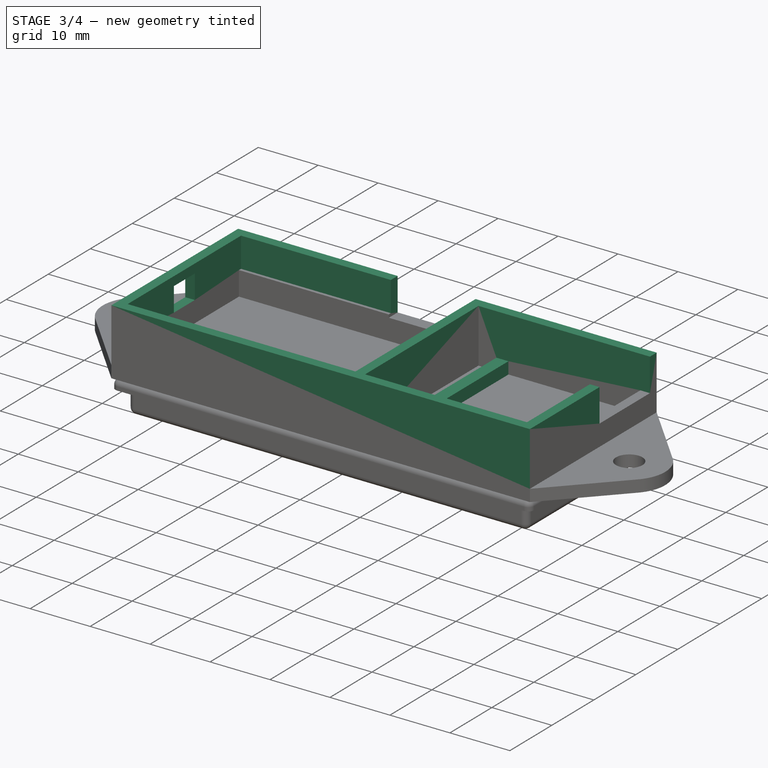
[diagram: stage 3 of 4 — iso view after this stage's code; geometry added in this stage tinted green]
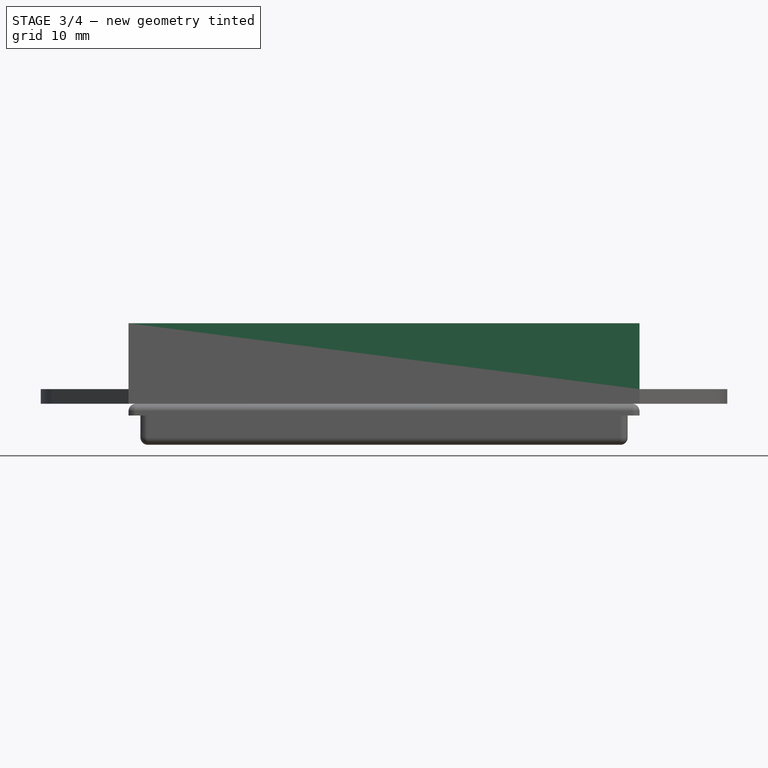
[diagram: stage 3 of 4 — front view after this stage's code; geometry added in this stage tinted green]
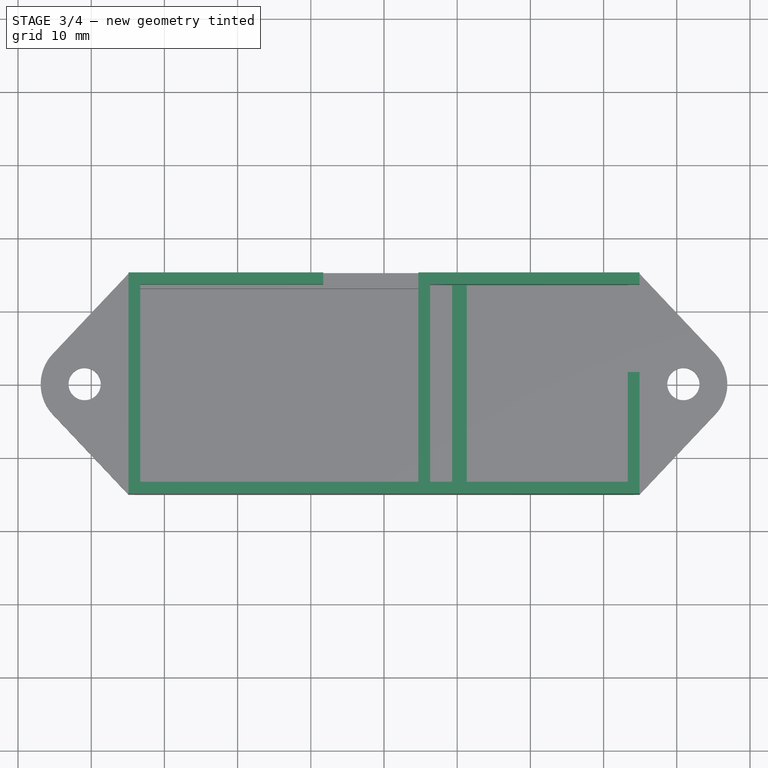
[diagram: stage 3 of 4 — top view after this stage's code; geometry added in this stage tinted green]
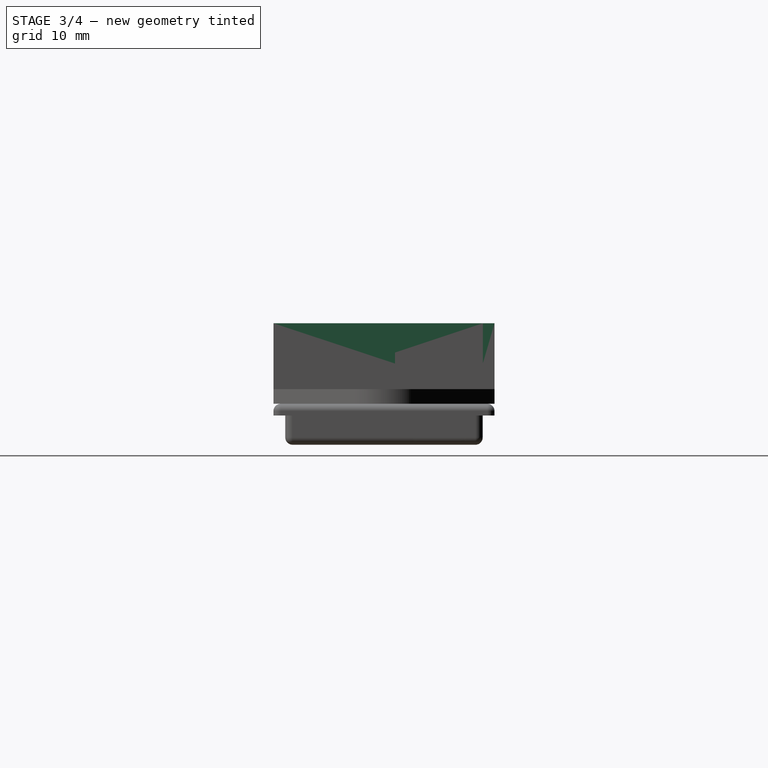
[diagram: stage 3 of 4 — right view after this stage's code; geometry added in this stage tinted green]
FEATURE [Sketcher::SketchObject] Sketch007
  AttachmentOffset = pos=(0,0,2) rot=(0,0,1;0rad)
  ExternalGeometry = -> [Sketch]
  FullyConstrained = true
  MapMode = 5
  Placement = pos=(0,0,2) rot=(0,0,1;0rad)
  Support = -> [XY_Plane001]
  expr: .AttachmentOffset.Base.z = Pad.Length
  sketch-geometry (4):
    g0: LineSegment StartX=9.3 StartY=13.5 StartZ=0 EndX=11.3 EndY=13.5 EndZ=0
    g1: LineSegment StartX=11.3 StartY=13.5 StartZ=0 EndX=11.3 EndY=-13.5 EndZ=0
    g2: LineSegment StartX=11.3 StartY=-13.5 StartZ=0 EndX=9.3 EndY=-13.5 EndZ=0
    g3: LineSegment StartX=9.3 StartY=-13.5 StartZ=0 EndX=9.3 EndY=13.5 EndZ=0
  constraints (12):
    c: Coincident(g0,g1)
    c: Coincident(g1,g2)
    c: Coincident(g2,g3)
    c: Coincident(g3,g0)
    c: Horizontal(g0)
    c: Horizontal(g2)
    c: Vertical(g1)
    c: Vertical(g3)
    c: PointOnObject(g0,g-3)
    c: PointOnObject(g1,g-4)
    c: DistanceX(g0,g0) = 2
    c: DistanceX(g-3,g0) = 3
FEATURE [PartDesign::Pad] Pad005
  BaseFeature = -> Pad004
  Direction = (1,1,1)
  Length = 2
  Length2 = 100
  Profile = -> Sketch007
  Type = 0
FEATURE [PartDesign::Pad] Pad002
  BaseFeature = -> Pad005
  Direction = (1,1,1)
  Length = 5
  Length2 = 100
  Profile = -> Sketch003
  Refine = true
  Type = 0
FEATURE [PartDesign::Pocket] Pocket
  BaseFeature = -> Pad002
  Length = 5
  Length2 = 100
  Profile = -> Sketch004
  Type = 2
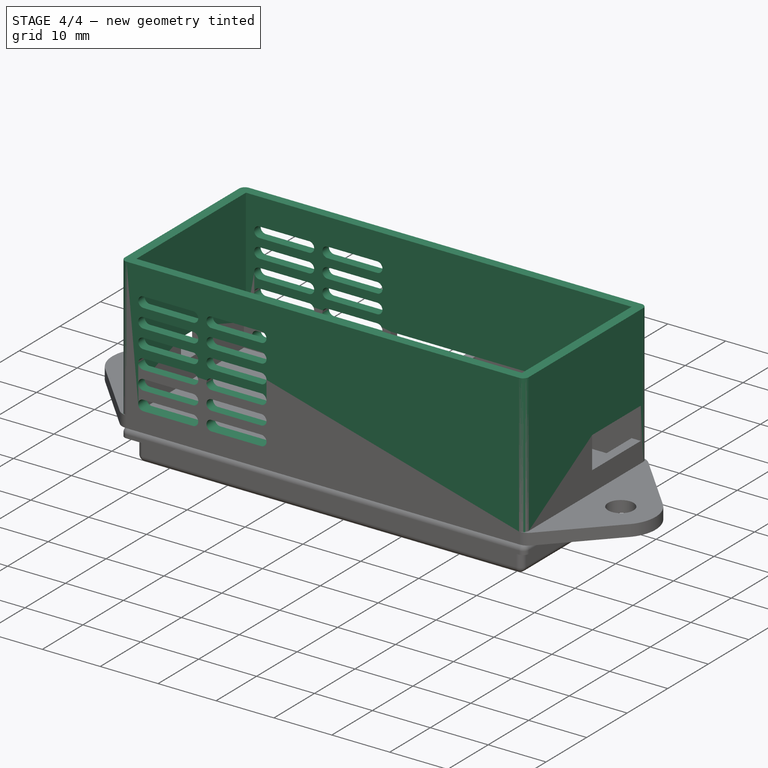
[diagram: stage 4 of 4 — iso view after this stage's code; geometry added in this stage tinted green]
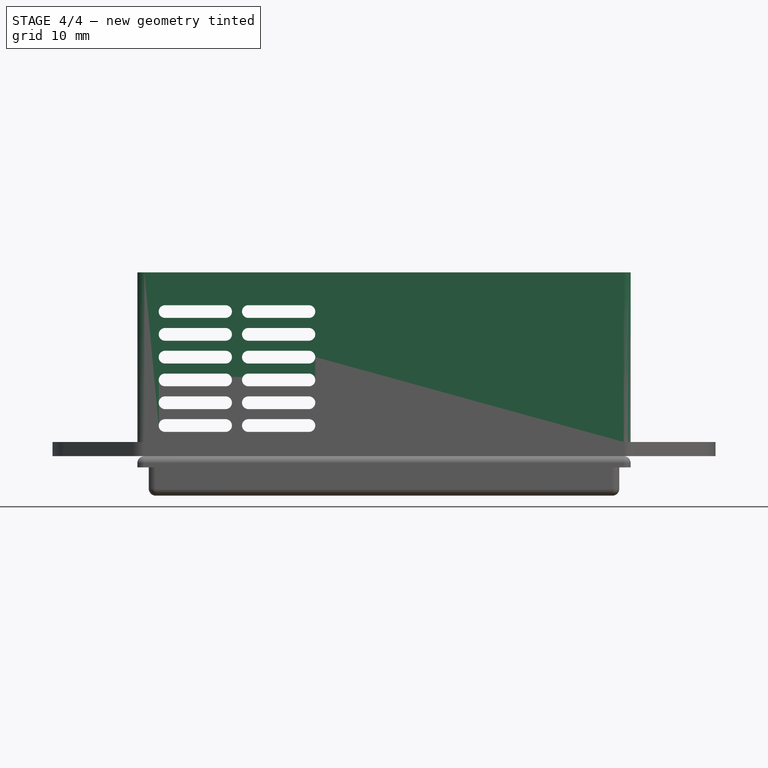
[diagram: stage 4 of 4 — front view after this stage's code; geometry added in this stage tinted green]
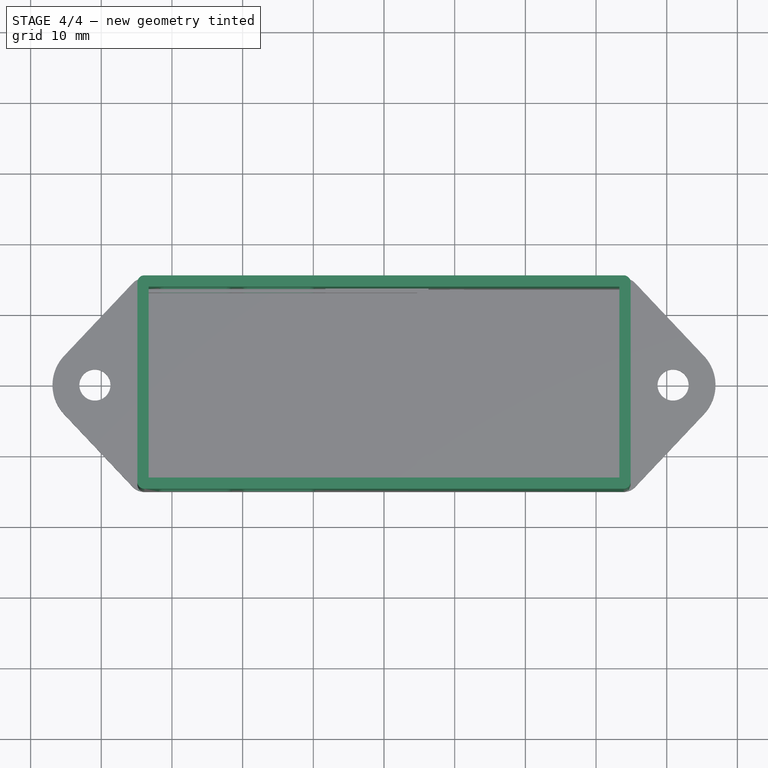
[diagram: stage 4 of 4 — top view after this stage's code; geometry added in this stage tinted green]
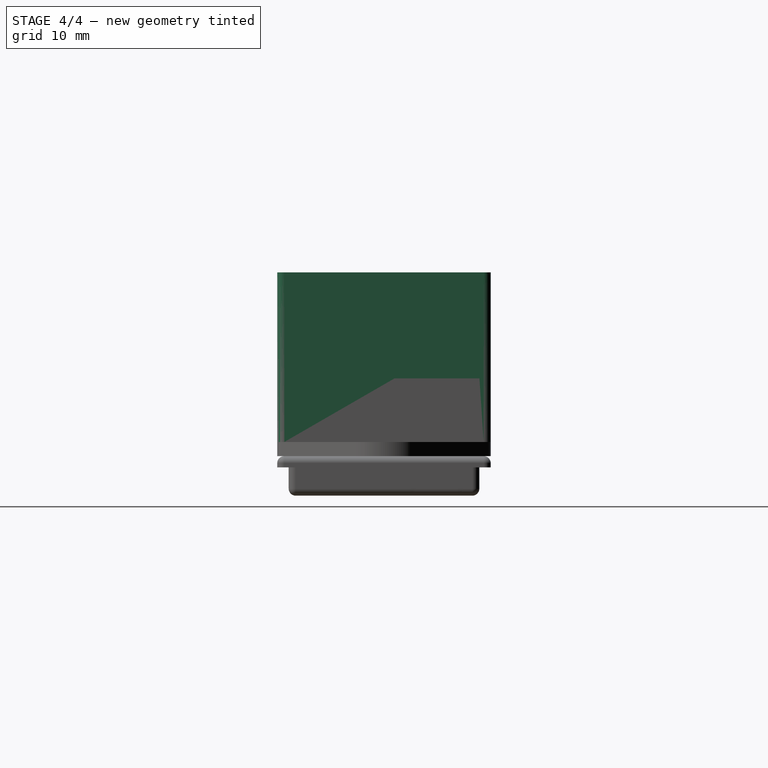
[diagram: stage 4 of 4 — right view after this stage's code; geometry added in this stage tinted green]
FEATURE [PartDesign::Pad] Pad003
  BaseFeature = -> Pocket
  Direction = (1,1,1)
  Length = 15
  Length2 = 100
  Profile = -> Sketch005
  Refine = true
  Type = 0
  expr: Length = 24mm - <<Pad001>>.Length - <<Pad002>>.Length
FEATURE [Sketcher::SketchObject] Sketch011
  ExternalGeometry = -> [Sketch]
  FullyConstrained = true
  MapMode = 5
  Placement = pos=(0,0,0) rot=(1,0,0;1.5708rad)
  Support = -> [XZ_Plane001]
  expr: Constraints[10] = <<Pad>>.Length + <<Pad001>>.Length + <<Pad002>>.Length + <<Pad003>>.Length
  expr: Constraints[11] = <<Pad>>.Length
  sketch-geometry (77):
    g0: LineSegment StartX=-33.3 StartY=0 StartZ=0 EndX=-33.3 EndY=26 EndZ=0
    g1: LineSegment StartX=-33.3 StartY=26 StartZ=0 EndX=-8.3 EndY=26 EndZ=0
    g2: LineSegment StartX=-8.3 StartY=26 StartZ=0 EndX=-8.3 EndY=-3.6e-15 EndZ=0
    g3: LineSegment StartX=-33.3 StartY=2 StartZ=0 EndX=-8.3 EndY=2 EndZ=0
    g4: ArcOfCircle CenterX=-30.975 CenterY=4.325 CenterZ=0 NormalX=0 NormalY=0 NormalZ=1 AngleXU=0 Radius=0.9 StartAngle=1.5708 EndAngle=4.71239
    g5: ArcOfCircle CenterX=-22.4125 CenterY=4.325 CenterZ=0 NormalX=0 NormalY=0 NormalZ=1 AngleXU=0 Radius=0.9 StartAngle=4.71239 EndAngle=7.85398
    g6: LineSegment StartX=-30.975 StartY=3.425 StartZ=0 EndX=-22.4125 EndY=3.425 EndZ=0
    g7: LineSegment StartX=-30.975 StartY=5.225 StartZ=0 EndX=-22.4125 EndY=5.225 EndZ=0
    g8: ArcOfCircle CenterX=-19.1875 CenterY=4.325 CenterZ=0 NormalX=0 NormalY=0 NormalZ=1 AngleXU=0 Radius=0.9 StartAngle=1.5708 EndAngle=4.71239
    g9: ArcOfCircle CenterX=-10.625 CenterY=4.325 CenterZ=0 NormalX=0 NormalY=0 NormalZ=1 AngleXU=0 Radius=0.9 StartAngle=4.71239 EndAngle=7.85398
    g10: LineSegment StartX=-19.1875 StartY=3.425 StartZ=0 EndX=-10.625 EndY=3.425 EndZ=0
    g11: LineSegment StartX=-19.1875 StartY=5.225 StartZ=0 EndX=-10.625 EndY=5.225 EndZ=0
    g12: LineSegment StartX=-33.3 StartY=4.325 StartZ=0 EndX=-31.875 EndY=4.325 EndZ=0
    g13: LineSegment StartX=-21.5125 StartY=4.325 StartZ=0 EndX=-20.0875 EndY=4.325 EndZ=0
    g14: LineSegment StartX=-9.725 StartY=4.325 StartZ=0 EndX=-8.3 EndY=4.325 EndZ=0
    g15: LineSegment StartX=-30.975 StartY=3.425 StartZ=0 EndX=-30.975 EndY=2 EndZ=0
    g16: ArcOfCircle CenterX=-30.975 CenterY=7.55 CenterZ=0 NormalX=0 NormalY=0 NormalZ=1 AngleXU=0 Radius=0.9 StartAngle=1.5708 EndAngle=4.71239
    g17: ArcOfCircle CenterX=-22.4125 CenterY=7.55 CenterZ=0 NormalX=0 NormalY=0 NormalZ=1 AngleXU=0 Radius=0.9 StartAngle=4.71239 EndAngle=7.85398
    g18: LineSegment StartX=-30.975 StartY=6.65 StartZ=0 EndX=-22.4125 EndY=6.65 EndZ=0
    g19: LineSegment StartX=-30.975 StartY=8.45 StartZ=0 EndX=-22.4125 EndY=8.45 EndZ=0
    g20: ArcOfCircle CenterX=-19.1875 CenterY=7.55 CenterZ=0 NormalX=0 NormalY=0 NormalZ=1 AngleXU=0 Radius=0.9 StartAngle=1.5708 EndAngle=4.71239
    g21: ArcOfCircle CenterX=-10.625 CenterY=7.55 CenterZ=0 NormalX=0 NormalY=0 NormalZ=1 AngleXU=0 Radius=0.9 StartAngle=4.71239 EndAngle=7.85398
    g22: LineSegment StartX=-19.1875 StartY=6.65 StartZ=0 EndX=-10.625 EndY=6.65 EndZ=0
    g23: LineSegment StartX=-19.1875 StartY=8.45 StartZ=0 EndX=-10.625 EndY=8.45 EndZ=0
    g24: LineSegment StartX=-21.5125 StartY=7.55 StartZ=0 EndX=-20.0875 EndY=7.55 EndZ=0
    g25: ArcOfCircle CenterX=-30.975 CenterY=10.775 CenterZ=0 NormalX=0 NormalY=0 NormalZ=1 AngleXU=0 Radius=0.9 StartAngle=1.5708 EndAngle=4.71239
    g26: ArcOfCircle CenterX=-22.4125 CenterY=10.775 CenterZ=0 NormalX=0 NormalY=0 NormalZ=1 AngleXU=0 Radius=0.9 StartAngle=4.71239 EndAngle=7.85398
    g27: LineSegment StartX=-30.975 StartY=9.875 StartZ=0 EndX=-22.4125 EndY=9.875 EndZ=0
    g28: LineSegment StartX=-30.975 StartY=11.675 StartZ=0 EndX=-22.4125 EndY=11.675 EndZ=0
    g29: ArcOfCircle CenterX=-19.1875 CenterY=10.775 CenterZ=0 NormalX=0 NormalY=0 NormalZ=1 AngleXU=0 Radius=0.9 StartAngle=1.5708 EndAngle=4.71239
    g30: ArcOfCircle CenterX=-10.625 CenterY=10.775 CenterZ=0 NormalX=0 NormalY=0 NormalZ=1 AngleXU=0 Radius=0.9 StartAngle=4.71239 EndAngle=7.85398
    g31: LineSegment StartX=-19.1875 StartY=9.875 StartZ=0 EndX=-10.625 EndY=9.875 EndZ=0
    g32: LineSegment StartX=-19.1875 StartY=11.675 StartZ=0 EndX=-10.625 EndY=11.675 EndZ=0
    g33: LineSegment StartX=-21.5125 StartY=10.775 StartZ=0 EndX=-20.0875 EndY=10.775 EndZ=0
    g34: ArcOfCircle CenterX=-30.975 CenterY=14 CenterZ=0 NormalX=0 NormalY=0 NormalZ=1 AngleXU=0 Radius=0.9 StartAngle=1.5708 EndAngle=4.71239
    g35: ArcOfCircle CenterX=-22.4125 CenterY=14 CenterZ=0 NormalX=0 NormalY=0 NormalZ=1 AngleXU=0 Radius=0.9 StartAngle=4.71239 EndAngle=7.85398
    g36: LineSegment StartX=-30.975 StartY=13.1 StartZ=0 EndX=-22.4125 EndY=13.1 EndZ=0
    g37: LineSegment StartX=-30.975 StartY=14.9 StartZ=0 EndX=-22.4125 EndY=14.9 EndZ=0
    g38: ArcOfCircle CenterX=-19.1875 CenterY=14 CenterZ=0 NormalX=0 NormalY=0 NormalZ=1 AngleXU=0 Radius=0.9 StartAngle=1.5708 EndAngle=4.71239
    g39: ArcOfCircle CenterX=-10.625 CenterY=14 CenterZ=0 NormalX=0 NormalY=0 NormalZ=1 AngleXU=0 Radius=0.9 StartAngle=4.71239 EndAngle=7.85398
    g40: LineSegment StartX=-19.1875 StartY=13.1 StartZ=0 EndX=-10.625 EndY=13.1 EndZ=0
    g41: LineSegment StartX=-19.1875 StartY=14.9 StartZ=0 EndX=-10.625 EndY=14.9 EndZ=0
    g42: LineSegment StartX=-21.5125 StartY=14 StartZ=0 EndX=-20.0875 EndY=14 EndZ=0
    g43: ArcOfCircle CenterX=-30.975 CenterY=17.225 CenterZ=0 NormalX=0 NormalY=0 NormalZ=1 AngleXU=0 Radius=0.9 StartAngle=1.5708 EndAngle=4.71239
    g44: ArcOfCircle CenterX=-22.4125 CenterY=17.225 CenterZ=0 NormalX=0 NormalY=0 NormalZ=1 AngleXU=0 Radius=0.9 StartAngle=4.71239 EndAngle=7.85398
    g45: LineSegment StartX=-30.975 StartY=16.325 StartZ=0 EndX=-22.4125 EndY=16.325 EndZ=0
    g46: LineSegment StartX=-30.975 StartY=18.125 StartZ=0 EndX=-22.4125 EndY=18.125 EndZ=0
    g47: ArcOfCircle CenterX=-19.1875 CenterY=17.225 CenterZ=0 NormalX=0 NormalY=0 NormalZ=1 AngleXU=0 Radius=0.9 StartAngle=1.5708 EndAngle=4.71239
    g48: ArcOfCircle CenterX=-10.625 CenterY=17.225 CenterZ=0 NormalX=0 NormalY=0 NormalZ=1 AngleXU=0 Radius=0.9 StartAngle=4.71239 EndAngle=7.85398
    g49: LineSegment StartX=-19.1875 StartY=16.325 StartZ=0 EndX=-10.625 EndY=16.325 EndZ=0
    g50: LineSegment StartX=-19.1875 StartY=18.125 StartZ=0 EndX=-10.625 EndY=18.125 EndZ=0
    g51: LineSegment StartX=-21.5125 StartY=17.225 StartZ=0 EndX=-20.0875 EndY=17.225 EndZ=0
    g52: ArcOfCircle CenterX=-30.975 CenterY=20.45 CenterZ=0 NormalX=0 NormalY=0 NormalZ=1 AngleXU=0 Radius=0.9 StartAngle=1.5708 EndAngle=4.71239
    g53: ArcOfCircle CenterX=-22.4125 CenterY=20.45 CenterZ=0 NormalX=0 NormalY=0 NormalZ=1 AngleXU=0 Radius=0.9 StartAngle=4.71239 EndAngle=7.85398
    g54: LineSegment StartX=-30.975 StartY=19.55 StartZ=0 EndX=-22.4125 EndY=19.55 EndZ=0
    g55: LineSegment StartX=-30.975 StartY=21.35 StartZ=0 EndX=-22.4125 EndY=21.35 EndZ=0
    g56: ArcOfCircle CenterX=-19.1875 CenterY=20.45 CenterZ=0 NormalX=0 NormalY=0 NormalZ=1 AngleXU=0 Radius=0.9 StartAngle=1.5708 EndAngle=4.71239
    g57: ArcOfCircle CenterX=-10.625 CenterY=20.45 CenterZ=0 NormalX=0 NormalY=0 NormalZ=1 AngleXU=0 Radius=0.9 StartAngle=4.71239 EndAngle=7.85398
    g58: LineSegment StartX=-19.1875 StartY=19.55 StartZ=0 EndX=-10.625 EndY=19.55 EndZ=0
    g59: LineSegment StartX=-19.1875 StartY=21.35 StartZ=0 EndX=-10.625 EndY=21.35 EndZ=0
    g60: LineSegment StartX=-21.5125 StartY=20.45 StartZ=0 EndX=-20.0875 EndY=20.45 EndZ=0
    g61: ArcOfCircle CenterX=-30.975 CenterY=23.675 CenterZ=0 NormalX=0 NormalY=0 NormalZ=1 AngleXU=0 Radius=0.9 StartAngle=1.5708 EndAngle=4.71239
    g62: ArcOfCircle CenterX=-22.4125 CenterY=23.675 CenterZ=0 NormalX=0 NormalY=0 NormalZ=1 AngleXU=0 Radius=0.9 StartAngle=4.71239 EndAngle=7.85398
    g63: LineSegment StartX=-30.975 StartY=22.775 StartZ=0 EndX=-22.4125 EndY=22.775 EndZ=0
    g64: LineSegment StartX=-30.975 StartY=24.575 StartZ=0 EndX=-22.4125 EndY=24.575 EndZ=0
    g65: ArcOfCircle CenterX=-19.1875 CenterY=23.675 CenterZ=0 NormalX=0 NormalY=0 NormalZ=1 AngleXU=0 Radius=0.9 StartAngle=1.5708 EndAngle=4.71239
    g66: ArcOfCircle CenterX=-10.625 CenterY=23.675 CenterZ=0 NormalX=0 NormalY=0 NormalZ=1 AngleXU=0 Radius=0.9 StartAngle=4.71239 EndAngle=7.85398
    g67: LineSegment StartX=-19.1875 StartY=22.775 StartZ=0 EndX=-10.625 EndY=22.775 EndZ=0
    g68: LineSegment StartX=-19.1875 StartY=24.575 StartZ=0 EndX=-10.625 EndY=24.575 EndZ=0
    g69: LineSegment StartX=-21.5125 StartY=23.675 StartZ=0 EndX=-20.0875 EndY=23.675 EndZ=0
    g70: LineSegment StartX=-30.975 StartY=22.775 StartZ=0 EndX=-30.975 EndY=21.35 EndZ=0
    g71: LineSegment StartX=-30.975 StartY=19.55 StartZ=0 EndX=-30.975 EndY=18.125 EndZ=0
    g72: LineSegment StartX=-30.975 StartY=16.325 StartZ=0 EndX=-30.975 EndY=14.9 EndZ=0
    g73: LineSegment StartX=-30.975 StartY=13.1 StartZ=0 EndX=-30.975 EndY=11.675 EndZ=0
    g74: LineSegment StartX=-30.975 StartY=9.875 StartZ=0 EndX=-30.975 EndY=8.45 EndZ=0
    g75: LineSegment StartX=-30.975 StartY=6.65 StartZ=0 EndX=-30.975 EndY=5.225 EndZ=0
    g76: LineSegment StartX=-30.975 StartY=24.575 StartZ=0 EndX=-30.975 EndY=26 EndZ=0
  constraints (206):
    c: Coincident(g0,g-4)
    c: Vertical(g0)
    c: Coincident(g0,g1)
    c: Horizontal(g1)
    c: Coincident(g1,g2)
    c: Coincident(g2,g-3)
    c: Vertical(g2)
    c: PointOnObject(g3,g0)
    c: PointOnObject(g3,g2)
    c: Horizontal(g3)
    c: DistanceY(g0,g0) = 26
    c: DistanceY(g0,g3) = 2
    c: Tangent(g4,g7) = 1.5708
    c: Tangent(g4,g6) = -1.5708
    c: Tangent(g6,g5) = -1.5708
    c: Tangent(g7,g5) = 1.5708
    c: Horizontal(g6)
    c: Equal(g4,g5)
    c: Tangent(g8,g11) = 1.5708
    c: Tangent(g8,g10) = -1.5708
    c: Tangent(g10,g9) = -1.5708
    c: Tangent(g11,g9) = 1.5708
    c: Horizontal(g10)
    c: Equal(g8,g9)
    c: Equal(g8,g5)
    c: Radius(g4) = 0.9
    c: PointOnObject(g12,g0)
    c: PointOnObject(g12,g4)
    c: Horizontal(g12)
    c: PointOnObject(g13,g5)
    c: PointOnObject(g13,g8)
    c: Horizontal(g13)
    c: PointOnObject(g14,g9)
    c: PointOnObject(g14,g2)
    c: Horizontal(g14)
    c: PointOnObject(g9,g14)
    c: PointOnObject(g8,g13)
    c: PointOnObject(g5,g13)
    c: PointOnObject(g4,g12)
    c: Coincident(g15,g4)
    c: PointOnObject(g15,g3)
    c: Vertical(g15)
    c: Equal(g15,g12)
    c: Equal(g12,g13)
    c: Equal(g13,g14)
    c: Tangent(g16,g19) = 1.5708
    c: Tangent(g16,g18) = -1.5708
    c: Tangent(g18,g17) = -1.5708
    c: Tangent(g19,g17) = 1.5708
    c: Horizontal(g18)
    c: Equal(g16,g17)
    c: Tangent(g20,g23) = 1.5708
    c: Tangent(g20,g22) = -1.5708
    c: Tangent(g22,g21) = -1.5708
    c: Tangent(g23,g21) = 1.5708
    c: Horizontal(g22)
    c: Equal(g20,g21)
    c: Equal(g20,g17)
    c: PointOnObject(g24,g17)
    c: PointOnObject(g24,g20)
    c: Horizontal(g24)
    c: PointOnObject(g20,g24)
    c: PointOnObject(g17,g24)
    c: Tangent(g25,g28) = 1.5708
    c: Tangent(g25,g27) = -1.5708
    c: Tangent(g27,g26) = -1.5708
    c: Tangent(g28,g26) = 1.5708
    c: Horizontal(g27)
    c: Equal(g25,g26)
    c: Tangent(g29,g32) = 1.5708
    c: Tangent(g29,g31) = -1.5708
    c: Tangent(g31,g30) = -1.5708
    c: Tangent(g32,g30) = 1.5708
    c: Horizontal(g31)
    c: Equal(g29,g30)
    c: Equal(g29,g26)
    c: PointOnObject(g33,g26)
    c: PointOnObject(g33,g29)
    c: Horizontal(g33)
    c: PointOnObject(g29,g33)
    c: PointOnObject(g26,g33)
    c: Tangent(g34,g37) = 1.5708
    c: Tangent(g34,g36) = -1.5708
    c: Tangent(g36,g35) = -1.5708
    c: Tangent(g37,g35) = 1.5708
    c: Horizontal(g36)
    c: Equal(g34,g35)
    c: Tangent(g38,g41) = 1.5708
    c: Tangent(g38,g40) = -1.5708
    c: Tangent(g40,g39) = -1.5708
    c: Tangent(g41,g39) = 1.5708
    c: Horizontal(g40)
    c: Equal(g38,g39)
    c: Equal(g38,g35)
    c: PointOnObject(g42,g35)
    c: PointOnObject(g42,g38)
    c: Horizontal(g42)
    c: PointOnObject(g38,g42)
    c: PointOnObject(g35,g42)
    c: Tangent(g43,g46) = 1.5708
    c: Tangent(g43,g45) = -1.5708
    c: Tangent(g45,g44) = -1.5708
    c: Tangent(g46,g44) = 1.5708
    c: Horizontal(g45)
    c: Equal(g43,g44)
    c: Tangent(g47,g50) = 1.5708
    c: Tangent(g47,g49) = -1.5708
    c: Tangent(g49,g48) = -1.5708
    c: Tangent(g50,g48) = 1.5708
    c: Horizontal(g49)
    c: Equal(g47,g48)
    c: Equal(g47,g44)
    c: PointOnObject(g51,g44)
    c: PointOnObject(g51,g47)
    c: Horizontal(g51)
    c: PointOnObject(g47,g51)
    c: PointOnObject(g44,g51)
    c: Tangent(g52,g55) = 1.5708
    c: Tangent(g52,g54) = -1.5708
    c: Tangent(g54,g53) = -1.5708
    c: Tangent(g55,g53) = 1.5708
    c: Horizontal(g54)
    c: Equal(g52,g53)
    c: Tangent(g56,g59) = 1.5708
    c: Tangent(g56,g58) = -1.5708
    c: Tangent(g58,g57) = -1.5708
    c: Tangent(g59,g57) = 1.5708
    c: Horizontal(g58)
    c: Equal(g56,g57)
    c: Equal(g56,g53)
    c: PointOnObject(g60,g53)
    c: PointOnObject(g60,g56)
    c: Horizontal(g60)
    c: PointOnObject(g56,g60)
    c: PointOnObject(g53,g60)
    c: Tangent(g61,g64) = 1.5708
    c: Tangent(g61,g63) = -1.5708
    c: Tangent(g63,g62) = -1.5708
    c: Tangent(g64,g62) = 1.5708
    c: Horizontal(g63)
    c: Equal(g61,g62)
    c: Tangent(g65,g68) = 1.5708
    c: Tangent(g65,g67) = -1.5708
    c: Tangent(g67,g66) = -1.5708
    c: Tangent(g68,g66) = 1.5708
    c: Horizontal(g67)
    c: Equal(g65,g66)
    c: Equal(g65,g62)
    c: PointOnObject(g69,g62)
    c: PointOnObject(g69,g65)
    c: Horizontal(g69)
    c: PointOnObject(g65,g69)
    c: PointOnObject(g62,g69)
    c: Equal(g6,g10)
    c: Equal(g18,g22)
    c: Equal(g27,g31)
    c: Equal(g36,g40)
    c: Equal(g45,g49)
    c: Equal(g54,g58)
    c: Equal(g63,g67)
    c: Equal(g7,g18)
    c: Equal(g19,g27)
    c: Equal(g28,g36)
    c: Equal(g37,g45)
    c: Equal(g46,g54)
    c: Equal(g55,g63)
    c: Coincident(g70,g61)
    c: Coincident(g70,g52)
    c: Coincident(g71,g52)
    c: Coincident(g71,g43)
    c: Vertical(g71)
    c: Coincident(g72,g43)
    c: Coincident(g72,g34)
    c: Vertical(g72)
    c: Coincident(g73,g34)
    c: Coincident(g73,g25)
    c: Vertical(g73)
    c: Coincident(g74,g25)
    c: Coincident(g74,g16)
    c: Vertical(g74)
    c: Coincident(g75,g16)
    c: Coincident(g75,g4)
    c: Vertical(g75)
    c: Vertical(g70)
    c: Equal(g13,g24)
    c: Equal(g24,g33)
    c: Equal(g33,g42)
    c: Equal(g42,g51)
    c: Equal(g51,g60)
    c: Equal(g60,g69)
    c: Equal(g4,g16)
    c: Equal(g16,g25)
    c: Equal(g25,g34)
    c: Equal(g34,g43)
    c: Equal(g43,g52)
    c: Equal(g52,g61)
    c: Coincident(g76,g61)
    c: PointOnObject(g76,g1)
    c: Vertical(g76)
    c: Equal(g76,g70)
    c: Equal(g70,g71)
    c: Equal(g71,g72)
    c: Equal(g72,g73)
    c: Equal(g73,g74)
    c: Equal(g74,g75)
    c: Equal(g75,g15)
FEATURE [PartDesign::Pocket] Pocket002
  BaseFeature = -> Pad003
  Length = 5
  Length2 = 100
  Midplane = true
  Profile = -> Sketch011
  Type = 1
FEATURE [PartDesign::Fillet] Fillet001
  Base = -> Pocket002 [Edge75,Edge283,Edge226,Edge78]
  BaseFeature = -> Pocket002
  Radius = 1
  SupportTransform = false
FEATURE [PartDesign::Fillet] Fillet002
  Base = -> Fillet001 [Edge6,Edge7,Edge224,Edge225]
  BaseFeature = -> Fillet001
  Radius = 2.2
  SupportTransform = false
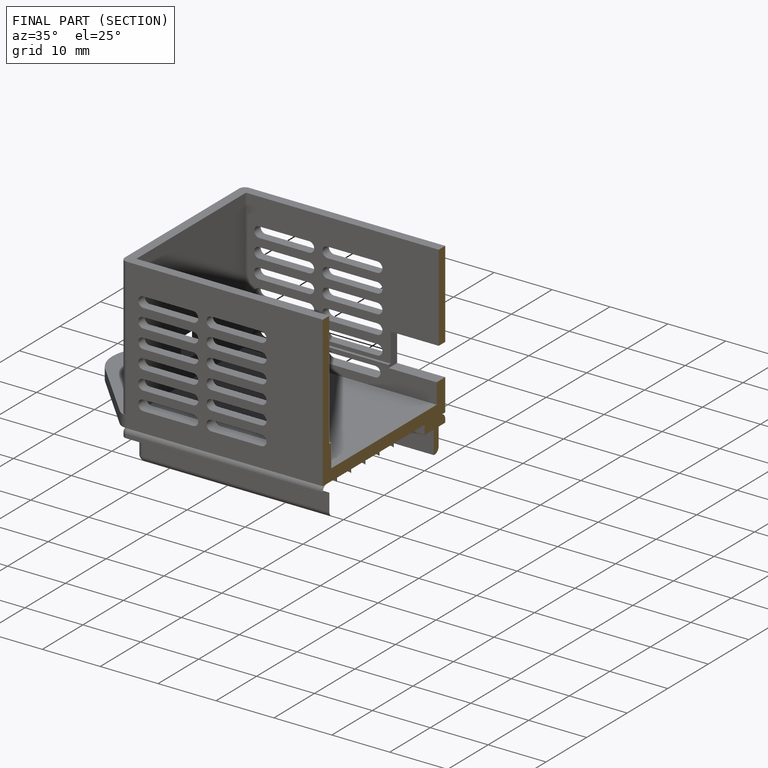
[diagram: finished part — half-section view (interior)]
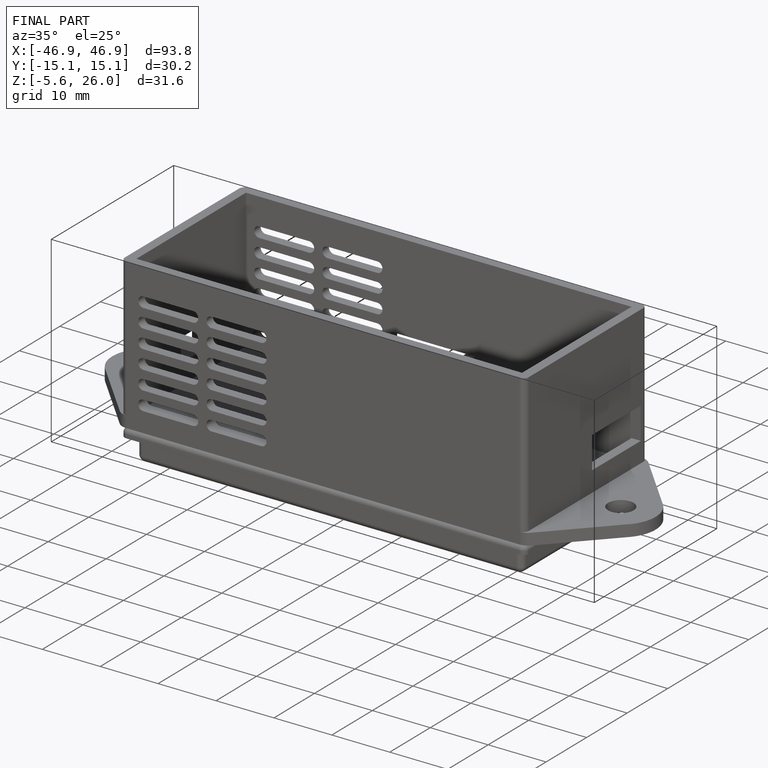
[diagram: finished part — iso view with bounding-box wireframe]
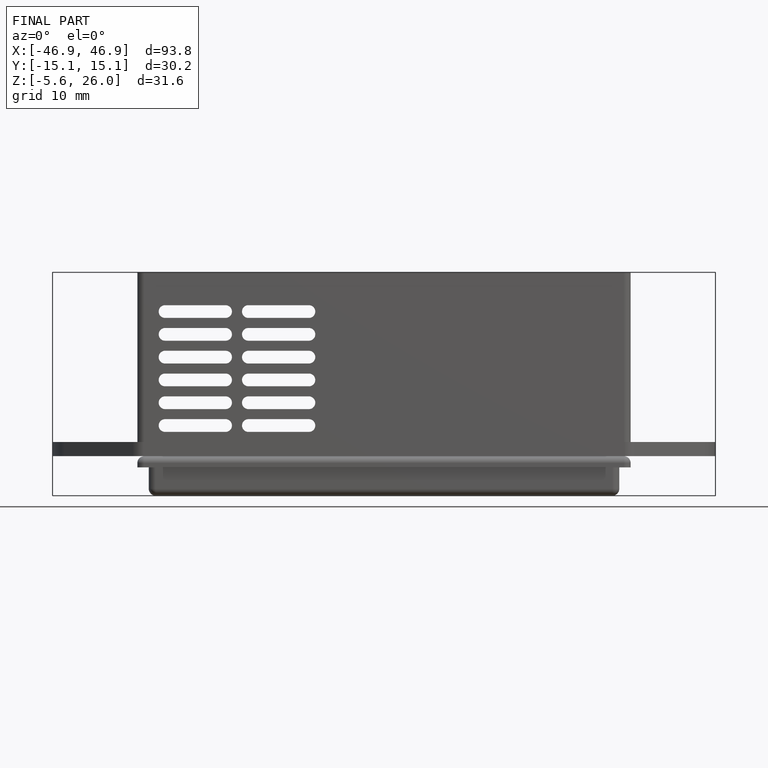
[diagram: finished part — front view with bounding-box wireframe]
